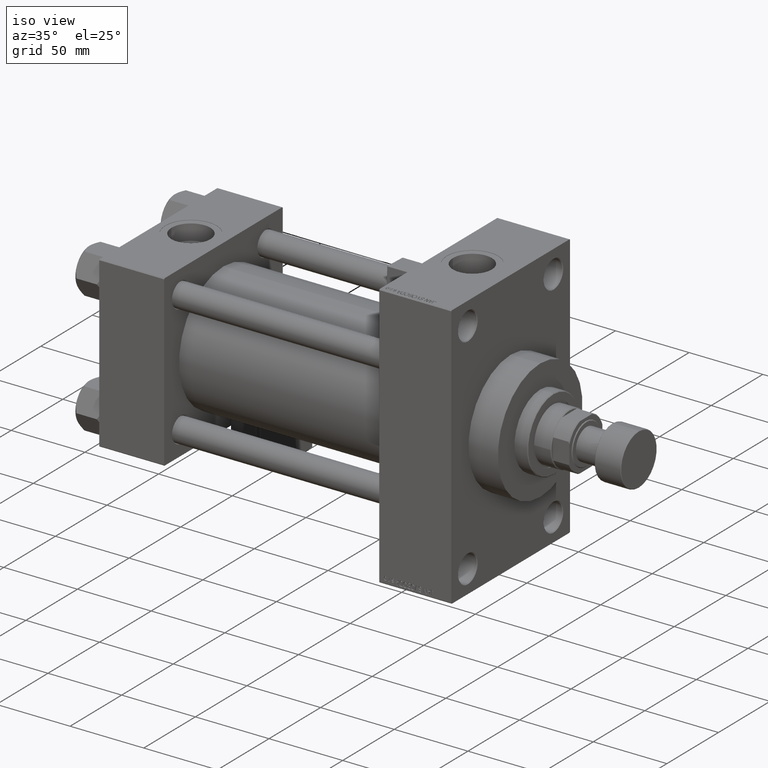
[diagram: clean part render]
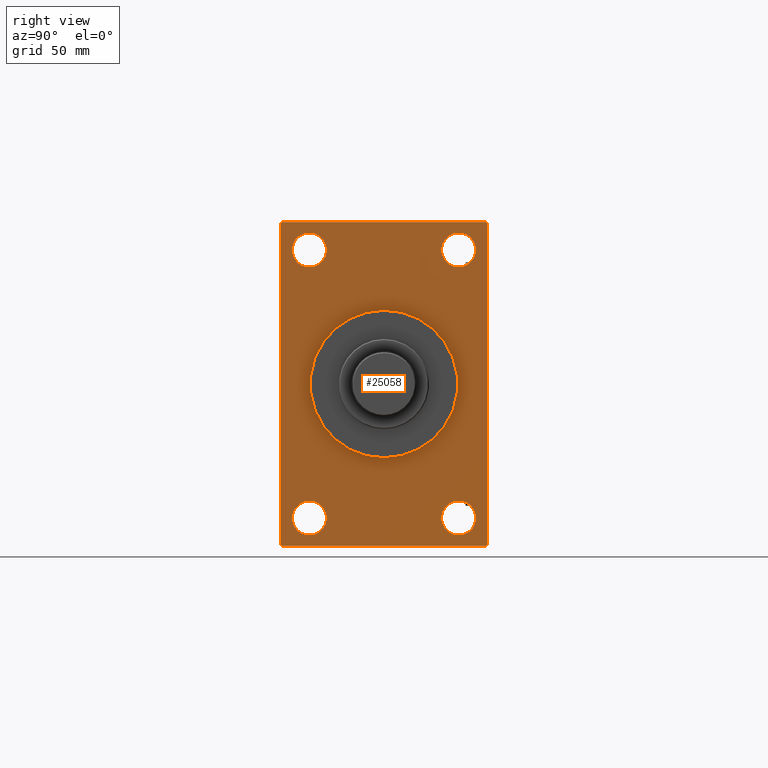
[diagram: tour spotlight — one face highlighted and labeled with its STEP entity id]
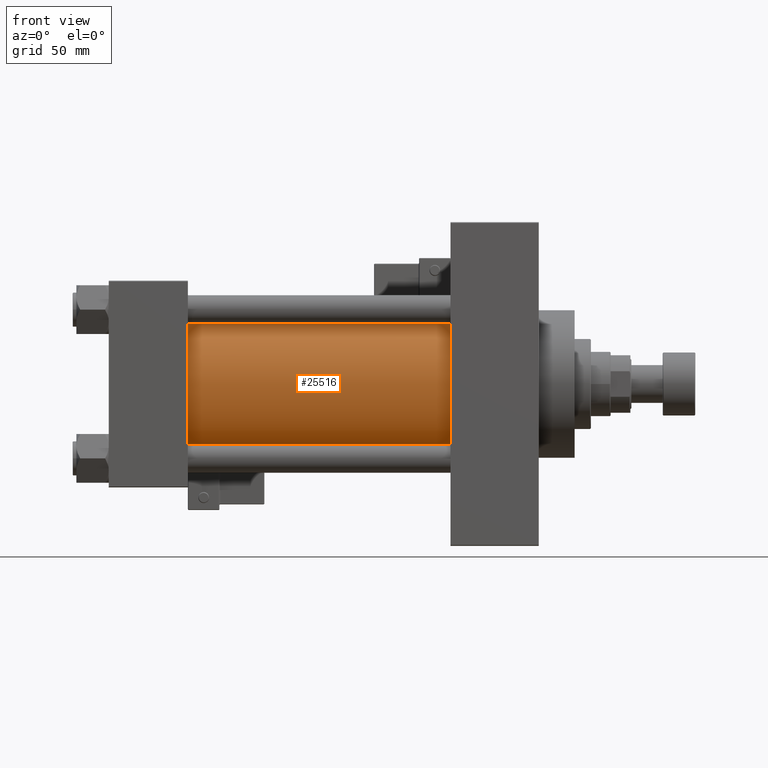
[diagram: tour spotlight — one face highlighted and labeled with its STEP entity id]
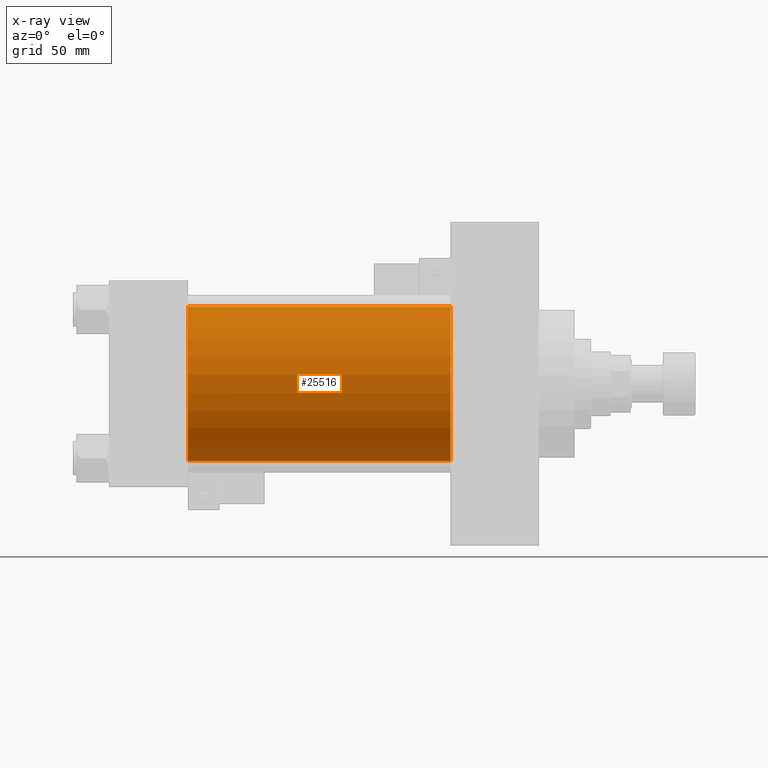
[diagram: x-ray of the same camera — body ghosted, this tour face saturated]
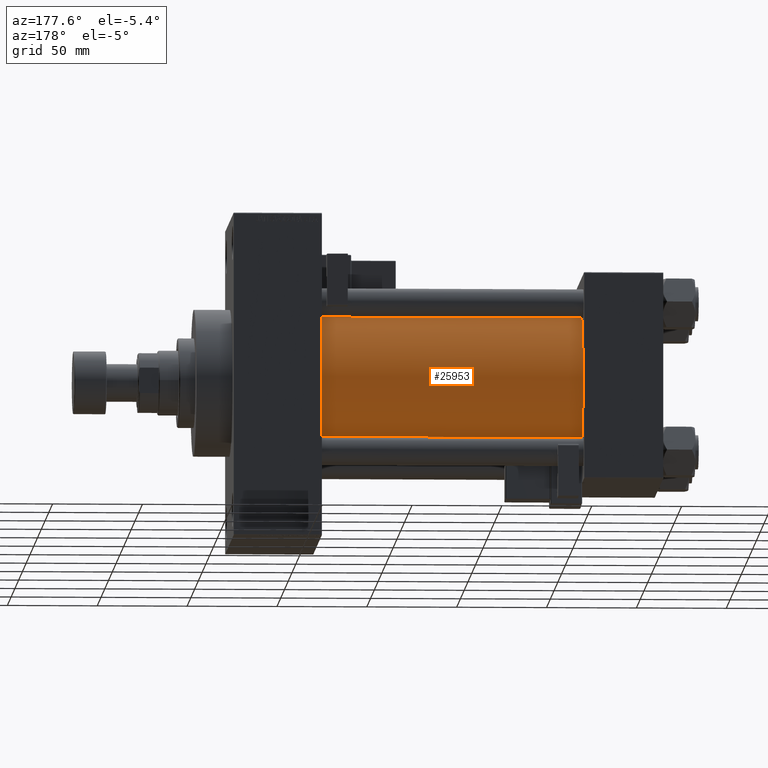
[diagram: tour spotlight — one face highlighted and labeled with its STEP entity id]
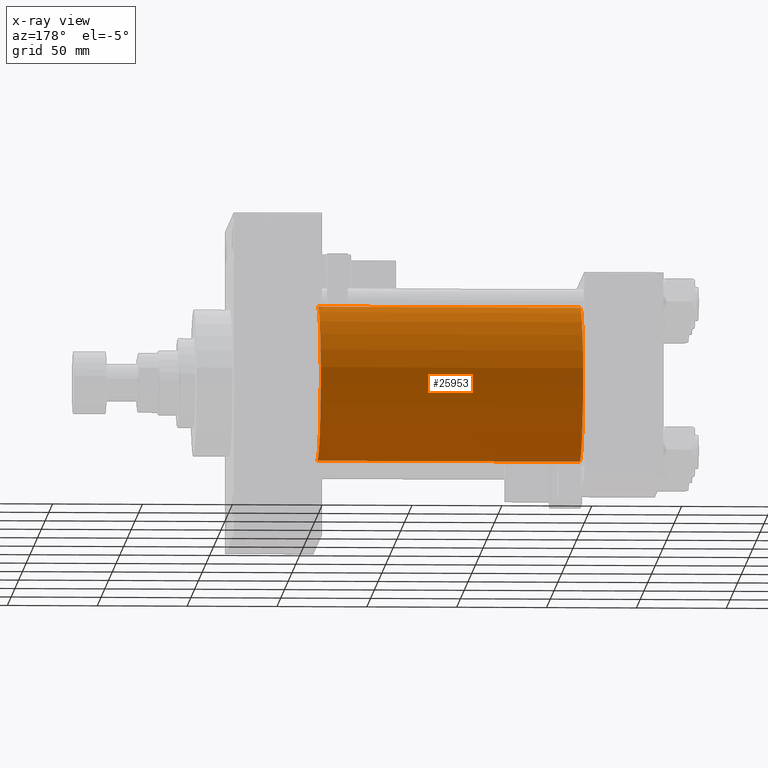
[diagram: x-ray of the same camera — body ghosted, this tour face saturated]
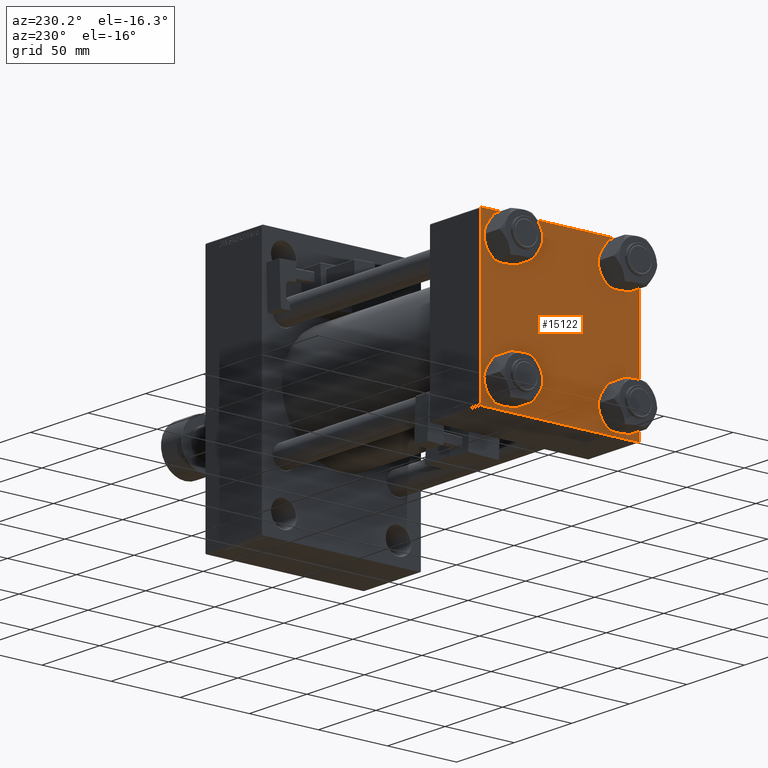
[diagram: tour spotlight — one face highlighted and labeled with its STEP entity id]
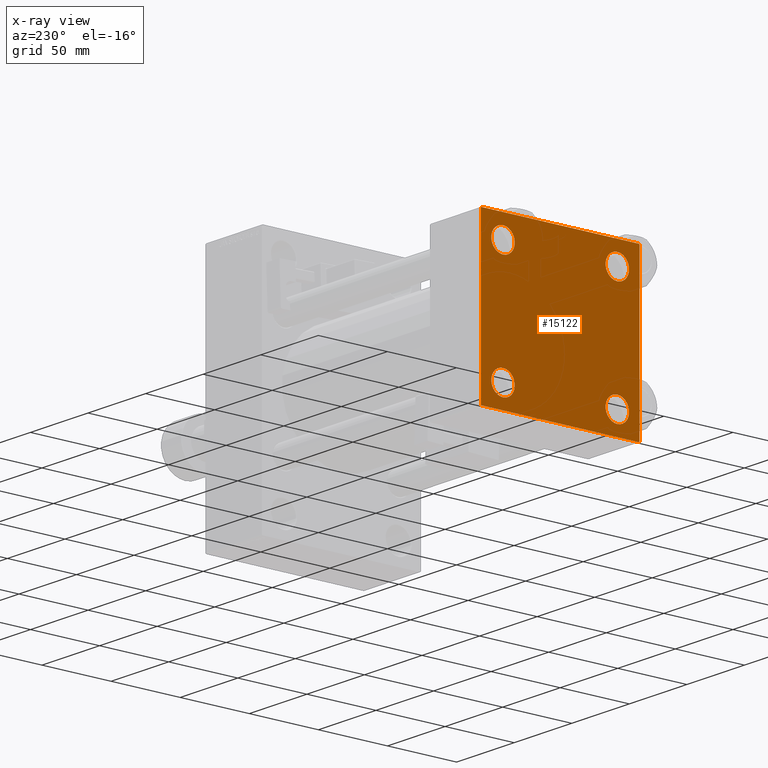
[diagram: x-ray of the same camera — body ghosted, this tour face saturated]
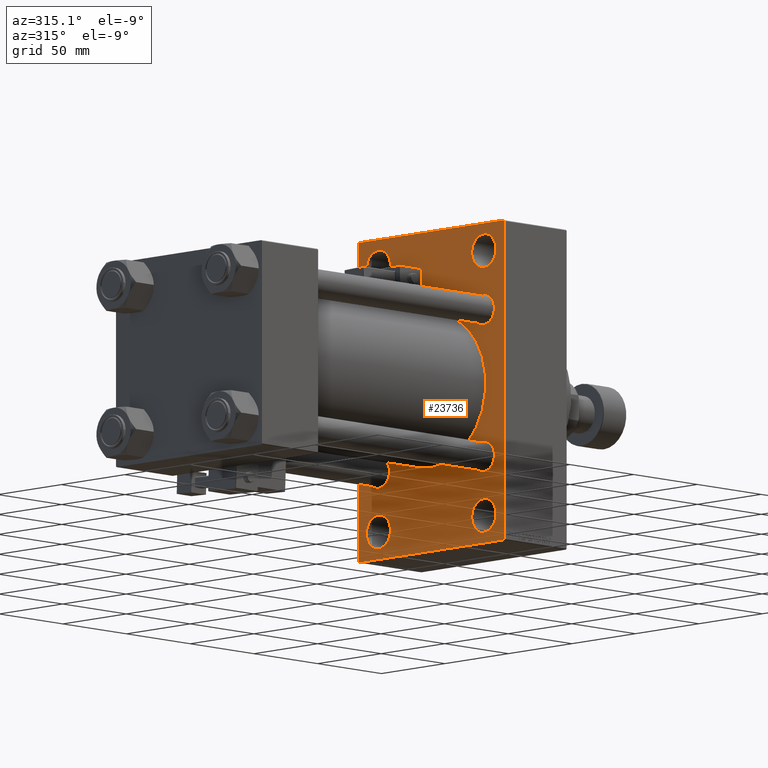
[diagram: tour spotlight — one face highlighted and labeled with its STEP entity id]
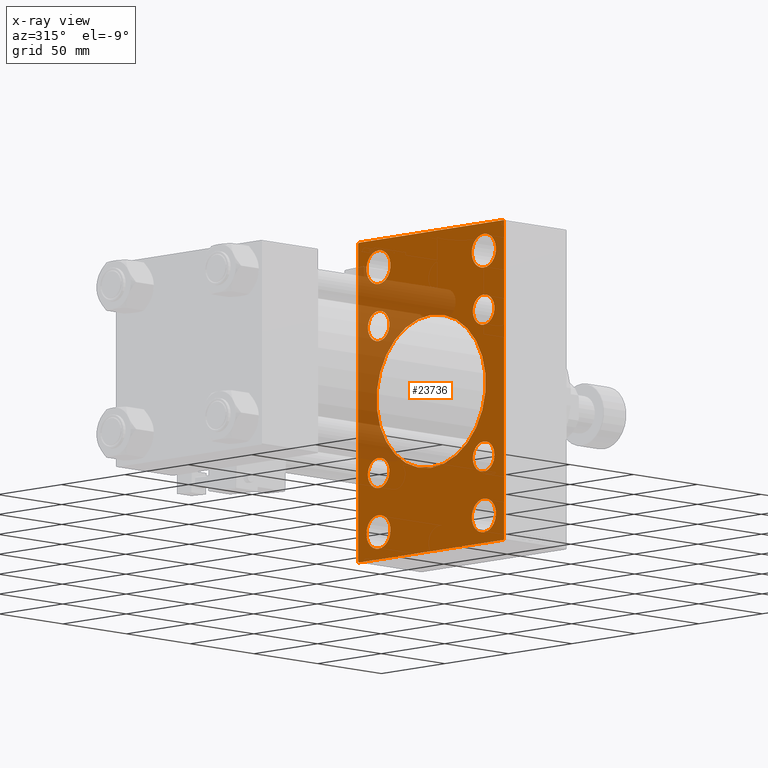
[diagram: x-ray of the same camera — body ghosted, this tour face saturated]
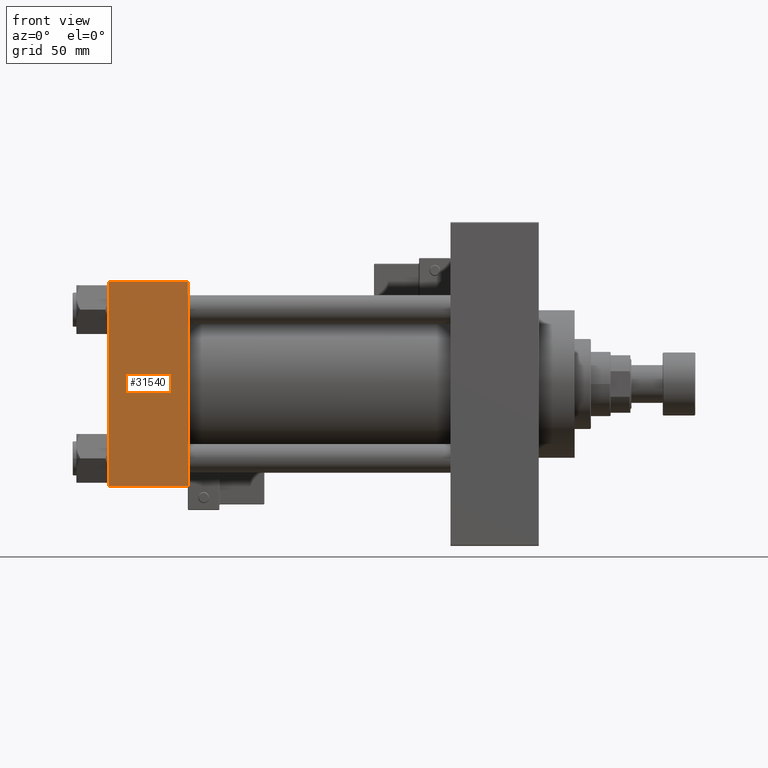
[diagram: tour spotlight — one face highlighted and labeled with its STEP entity id]
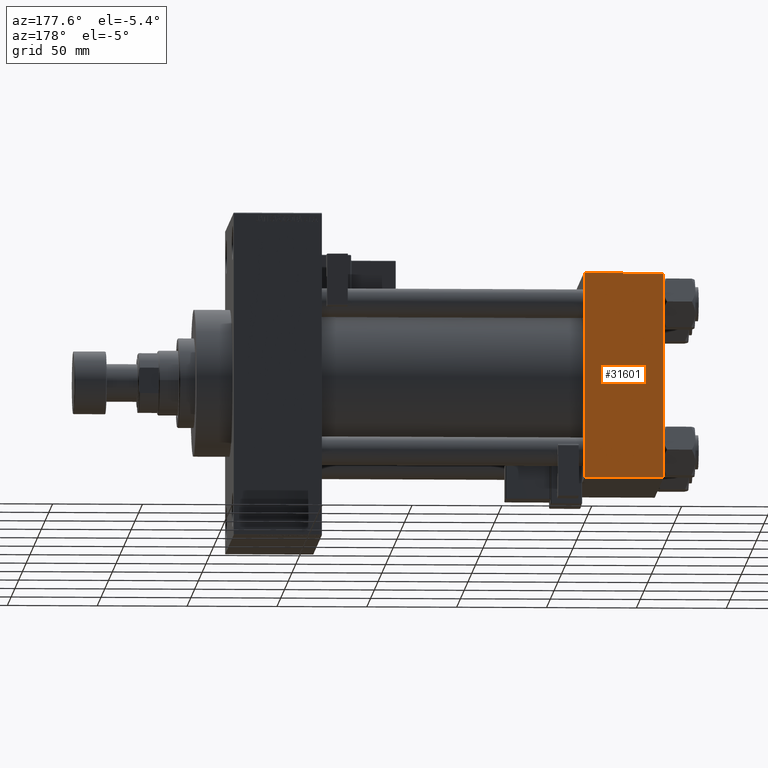
[diagram: tour spotlight — one face highlighted and labeled with its STEP entity id]
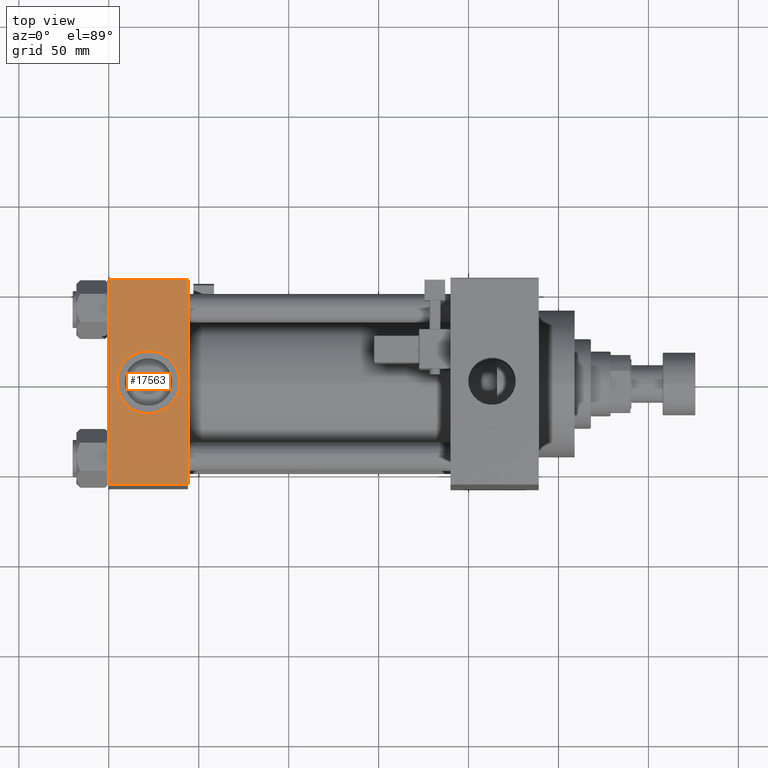
[diagram: tour spotlight — one face highlighted and labeled with its STEP entity id]
A machine part: a face-by-face anatomy tour. The part has 1319 B-rep faces; the first image is the clean iso view, then the 8 largest visible faces are spotlighted one at a time (largest first), each with its STEP entity span.

Face 1 — right view, entity #25058. In plain terms, the highlighted planar face has unit normal (-1, 0, 0).
Definition (entity closure, byte-faithful):
#137 = DIRECTION ( 'NONE',  ( -1.000000000000000000, 0.000000000000000000, -0.000000000000000000 ) ) ;
#344 = VECTOR ( 'NONE', #40913, 1000.000000000000000 ) ;
#886 = CARTESIAN_POINT ( 'NONE',  ( 239.0000000000000000, -41.49999999999999289, -83.99999999999998579 ) ) ;
#972 = CARTESIAN_POINT ( 'NONE',  ( 239.0000000000000000, 0.000000000000000000, 0.000000000000000000 ) ) ;
#1580 = CARTESIAN_POINT ( 'NONE',  ( 239.0000000000000000, -41.49999999999999289, 74.50000000000001421 ) ) ;
#1906 = EDGE_LOOP ( 'NONE', ( #25823, #15950, #28905, #39026, #38880, #3445, #3188, #40439 ) ) ;
#2168 = VERTEX_POINT ( 'NONE', #6017 ) ;
#2479 = DIRECTION ( 'NONE',  ( 0.000000000000000000, 0.000000000000000000, 1.000000000000000000 ) ) ;
#2595 = LINE ( 'NONE', #25263, #43171 ) ;
#2850 = CARTESIAN_POINT ( 'NONE',  ( 239.0000000000000000, 41.50000000000000711, 74.50000000000001421 ) ) ;
#3188 = ORIENTED_EDGE ( 'NONE', *, *, #21799, .T. ) ;
#3445 = ORIENTED_EDGE ( 'NONE', *, *, #5389, .T. ) ;
#4232 = ORIENTED_EDGE ( 'NONE', *, *, #18412, .T. ) ;
#4272 = DIRECTION ( 'NONE',  ( -1.000000000000000000, 0.000000000000000000, -0.000000000000000000 ) ) ;
#4408 = ORIENTED_EDGE ( 'NONE', *, *, #26892, .T. ) ;
#4708 = ORIENTED_EDGE ( 'NONE', *, *, #29250, .F. ) ;
#4787 = DIRECTION ( 'NONE',  ( 0.000000000000000000, 0.000000000000000000, -1.000000000000000000 ) ) ;
#4960 = EDGE_LOOP ( 'NONE', ( #39636, #43661 ) ) ;
#5164 = EDGE_CURVE ( 'NONE', #29628, #28672, #13326, .T. ) ;
#5260 = EDGE_CURVE ( 'NONE', #25186, #21575, #32038, .T. ) ;
#5287 = EDGE_CURVE ( 'NONE', #47974, #48120, #44998, .T. ) ;
#5387 = DIRECTION ( 'NONE',  ( -0.000000000000000000, -0.7071067811865328068, -0.7071067811865622277 ) ) ;
#5389 = EDGE_CURVE ( 'NONE', #47974, #24473, #32778, .T. ) ;
#6017 = CARTESIAN_POINT ( 'NONE',  ( 239.0000000000000000, 56.99999999999995026, -90.00000000000000000 ) ) ;
#6048 = VERTEX_POINT ( 'NONE', #26289 ) ;
#6097 = EDGE_CURVE ( 'NONE', #21575, #25186, #7568, .T. ) ;
#6639 = LINE ( 'NONE', #18078, #23384 ) ;
#6705 = CARTESIAN_POINT ( 'NONE',  ( 239.0000000000000000, 57.49999999999997158, 89.99999999999998579 ) ) ;
#6799 = DIRECTION ( 'NONE',  ( 0.000000000000000000, 0.000000000000000000, 1.000000000000000000 ) ) ;
#7203 = CARTESIAN_POINT ( 'NONE',  ( 239.0000000000000000, -57.50000000000002132, -89.49999999999997158 ) ) ;
#7568 = CIRCLE ( 'NONE', #37637, 9.500000000000008882 ) ;
#8096 = DIRECTION ( 'NONE',  ( -0.000000000000000000, 0.000000000000000000, 1.000000000000000000 ) ) ;
#8586 = FACE_BOUND ( 'NONE', #27827, .T. ) ;
#8783 = ORIENTED_EDGE ( 'NONE', *, *, #5260, .T. ) ;
#8920 = VERTEX_POINT ( 'NONE', #26944 ) ;
#10112 = EDGE_CURVE ( 'NONE', #28672, #29628, #30486, .T. ) ;
#10523 = EDGE_LOOP ( 'NONE', ( #47727, #4408 ) ) ;
#10973 = FACE_OUTER_BOUND ( 'NONE', #1906, .T. ) ;
#11274 = DIRECTION ( 'NONE',  ( 0.000000000000000000, -1.000000000000000000, -1.206764157201257291E-16 ) ) ;
#11508 = CARTESIAN_POINT ( 'NONE',  ( 239.0000000000000000, -41.49999999999999289, -74.49999999999998579 ) ) ;
#11557 = EDGE_LOOP ( 'NONE', ( #4708, #17154 ) ) ;
#11680 = DIRECTION ( 'NONE',  ( 1.000000000000000000, 0.000000000000000000, 0.000000000000000000 ) ) ;
#12197 = DIRECTION ( 'NONE',  ( 0.000000000000000000, 0.000000000000000000, -1.000000000000000000 ) ) ;
#12357 = CARTESIAN_POINT ( 'NONE',  ( 239.0000000000000000, -57.00000000000002132, -90.00000000000001421 ) ) ;
#12456 = EDGE_CURVE ( 'NONE', #8920, #46553, #35427, .T. ) ;
#12545 = EDGE_CURVE ( 'NONE', #38206, #6048, #24741, .T. ) ;
#13326 = CIRCLE ( 'NONE', #35296, 9.500000000000008882 ) ;
#13464 = VECTOR ( 'NONE', #5387, 1000.000000000000000 ) ;
#13534 = CIRCLE ( 'NONE', #25715, 41.00000000000000000 ) ;
#13844 = CARTESIAN_POINT ( 'NONE',  ( 239.0000000000000000, 5.021051876504148963E-15, -41.00000000000000000 ) ) ;
#13888 = AXIS2_PLACEMENT_3D ( 'NONE', #2850, #25771, #21947 ) ;
#13942 = EDGE_CURVE ( 'NONE', #41422, #34022, #13534, .T. ) ;
#14181 = CARTESIAN_POINT ( 'NONE',  ( 239.0000000000000000, 57.00000000000002842, 89.99999999999998579 ) ) ;
#14596 = VERTEX_POINT ( 'NONE', #7203 ) ;
#14688 = CARTESIAN_POINT ( 'NONE',  ( 239.0000000000000000, 57.49999999999997868, -89.49999999999995737 ) ) ;
#15950 = ORIENTED_EDGE ( 'NONE', *, *, #41667, .T. ) ;
#16184 = CARTESIAN_POINT ( 'NONE',  ( 239.0000000000000000, 41.50000000000000711, -64.99999999999998579 ) ) ;
#16266 = CARTESIAN_POINT ( 'NONE',  ( 239.0000000000000000, 0.000000000000000000, 0.000000000000000000 ) ) ;
#16423 = ORIENTED_EDGE ( 'NONE', *, *, #6097, .T. ) ;
#17082 = CARTESIAN_POINT ( 'NONE',  ( 239.0000000000000000, 57.49999999999997868, -89.49999999999990052 ) ) ;
#17154 = ORIENTED_EDGE ( 'NONE', *, *, #13942, .F. ) ;
#17596 = LINE ( 'NONE', #21677, #48734 ) ;
#18078 = CARTESIAN_POINT ( 'NONE',  ( 239.0000000000000000, -57.50000000000002132, 89.99999999999997158 ) ) ;
#18412 = EDGE_CURVE ( 'NONE', #46553, #8920, #34008, .T. ) ;
#18439 = EDGE_CURVE ( 'NONE', #2168, #48120, #49567, .T. ) ;
#18820 = CARTESIAN_POINT ( 'NONE',  ( 239.0000000000000000, 41.50000000000000711, -74.50000000000000000 ) ) ;
#19046 = AXIS2_PLACEMENT_3D ( 'NONE', #41164, #25394, #2479 ) ;
#19102 = AXIS2_PLACEMENT_3D ( 'NONE', #972, #11680, #4787 ) ;
#19453 = CARTESIAN_POINT ( 'NONE',  ( 239.0000000000000000, -57.00000000000001421, 89.99999999999997158 ) ) ;
#20047 = FACE_BOUND ( 'NONE', #36523, .T. ) ;
#20382 = DIRECTION ( 'NONE',  ( -1.000000000000000000, 0.000000000000000000, -0.000000000000000000 ) ) ;
#21049 = CARTESIAN_POINT ( 'NONE',  ( 239.0000000000000000, -41.49999999999999289, -64.99999999999997158 ) ) ;
#21319 = CARTESIAN_POINT ( 'NONE',  ( 239.0000000000000000, 57.49999999999997158, 89.99999999999998579 ) ) ;
#21575 = VERTEX_POINT ( 'NONE', #886 ) ;
#21677 = CARTESIAN_POINT ( 'NONE',  ( 239.0000000000000000, -57.00000000000002132, -90.00000000000001421 ) ) ;
#21799 = EDGE_CURVE ( 'NONE', #24473, #38206, #30366, .T. ) ;
#21947 = DIRECTION ( 'NONE',  ( 0.000000000000000000, 0.000000000000000000, 1.000000000000000000 ) ) ;
#22277 = CARTESIAN_POINT ( 'NONE',  ( 239.0000000000000000, 41.50000000000000711, -84.00000000000000000 ) ) ;
#22304 = EDGE_CURVE ( 'NONE', #44269, #44322, #50291, .T. ) ;
#22360 = DIRECTION ( 'NONE',  ( -1.000000000000000000, 0.000000000000000000, -0.000000000000000000 ) ) ;
#22647 = DIRECTION ( 'NONE',  ( 0.000000000000000000, 0.000000000000000000, 1.000000000000000000 ) ) ;
#23384 = VECTOR ( 'NONE', #33864, 1000.000000000000000 ) ;
#23474 = CARTESIAN_POINT ( 'NONE',  ( 239.0000000000000000, 0.000000000000000000, 41.00000000000000000 ) ) ;
#23878 = FACE_BOUND ( 'NONE', #10523, .T. ) ;
#24473 = VERTEX_POINT ( 'NONE', #31438 ) ;
#24656 = DIRECTION ( 'NONE',  ( 1.000000000000000000, 0.000000000000000000, 0.000000000000000000 ) ) ;
#24741 = LINE ( 'NONE', #40260, #13464 ) ;
#24844 = AXIS2_PLACEMENT_3D ( 'NONE', #1580, #45099, #41269 ) ;
#25058 = ADVANCED_FACE ( 'NONE', ( #20047, #8586, #47046, #23878, #27695, #10973 ), #39396, .F. ) ;
#25186 = VERTEX_POINT ( 'NONE', #21049 ) ;
#25263 = CARTESIAN_POINT ( 'NONE',  ( 239.0000000000000000, 57.49999999999997868, -90.00000000000000000 ) ) ;
#25268 = CIRCLE ( 'NONE', #13888, 9.500000000000008882 ) ;
#25394 = DIRECTION ( 'NONE',  ( -1.000000000000000000, 0.000000000000000000, -0.000000000000000000 ) ) ;
#25676 = DIRECTION ( 'NONE',  ( 0.000000000000000000, 0.000000000000000000, 1.000000000000000000 ) ) ;
#25715 = AXIS2_PLACEMENT_3D ( 'NONE', #16266, #24656, #12197 ) ;
#25771 = DIRECTION ( 'NONE',  ( -1.000000000000000000, 0.000000000000000000, -0.000000000000000000 ) ) ;
#25823 = ORIENTED_EDGE ( 'NONE', *, *, #35203, .T. ) ;
#25909 = DIRECTION ( 'NONE',  ( 0.000000000000000000, -0.7071067811865474617, 0.7071067811865474617 ) ) ;
#26155 = CARTESIAN_POINT ( 'NONE',  ( 239.0000000000000000, -41.49999999999999289, 74.50000000000001421 ) ) ;
#26289 = CARTESIAN_POINT ( 'NONE',  ( 239.0000000000000000, -57.50000000000002132, 89.49999999999994316 ) ) ;
#26887 = EDGE_CURVE ( 'NONE', #2168, #42294, #2595, .T. ) ;
#26892 = EDGE_CURVE ( 'NONE', #44322, #44269, #25268, .T. ) ;
#26944 = CARTESIAN_POINT ( 'NONE',  ( 239.0000000000000000, -41.49999999999999289, 65.00000000000000000 ) ) ;
#27695 = FACE_BOUND ( 'NONE', #11557, .T. ) ;
#27827 = EDGE_LOOP ( 'NONE', ( #16423, #8783 ) ) ;
#28672 = VERTEX_POINT ( 'NONE', #22277 ) ;
#28905 = ORIENTED_EDGE ( 'NONE', *, *, #26887, .F. ) ;
#29027 = CARTESIAN_POINT ( 'NONE',  ( 239.0000000000000000, 41.50000000000000711, -74.50000000000000000 ) ) ;
#29250 = EDGE_CURVE ( 'NONE', #34022, #41422, #41883, .T. ) ;
#29628 = VERTEX_POINT ( 'NONE', #16184 ) ;
#30215 = DIRECTION ( 'NONE',  ( -0.000000000000000000, 0.7071067811865378028, 0.7071067811865573427 ) ) ;
#30366 = LINE ( 'NONE', #6705, #47057 ) ;
#30486 = CIRCLE ( 'NONE', #48354, 9.500000000000008882 ) ;
#31218 = VECTOR ( 'NONE', #25909, 1000.000000000000114 ) ;
#31425 = CARTESIAN_POINT ( 'NONE',  ( 239.0000000000000000, 41.50000000000000711, 65.00000000000000000 ) ) ;
#31438 = CARTESIAN_POINT ( 'NONE',  ( 239.0000000000000000, 57.00000000000002842, 89.99999999999998579 ) ) ;
#32038 = CIRCLE ( 'NONE', #19046, 9.500000000000008882 ) ;
#32160 = CARTESIAN_POINT ( 'NONE',  ( 239.0000000000000000, 41.50000000000000711, 84.00000000000001421 ) ) ;
#32778 = LINE ( 'NONE', #14181, #31218 ) ;
#33864 = DIRECTION ( 'NONE',  ( 0.000000000000000000, 0.000000000000000000, -1.000000000000000000 ) ) ;
#34008 = CIRCLE ( 'NONE', #45303, 9.500000000000008882 ) ;
#34022 = VERTEX_POINT ( 'NONE', #23474 ) ;
#35203 = EDGE_CURVE ( 'NONE', #6048, #14596, #6639, .T. ) ;
#35296 = AXIS2_PLACEMENT_3D ( 'NONE', #18820, #46571, #22647 ) ;
#35427 = CIRCLE ( 'NONE', #24844, 9.500000000000008882 ) ;
#35678 = DIRECTION ( 'NONE',  ( 0.000000000000000000, 0.000000000000000000, 1.000000000000000000 ) ) ;
#36523 = EDGE_LOOP ( 'NONE', ( #45948, #4232 ) ) ;
#37401 = AXIS2_PLACEMENT_3D ( 'NONE', #45607, #4272, #8096 ) ;
#37637 = AXIS2_PLACEMENT_3D ( 'NONE', #11508, #20382, #35678 ) ;
#38206 = VERTEX_POINT ( 'NONE', #19453 ) ;
#38880 = ORIENTED_EDGE ( 'NONE', *, *, #5287, .F. ) ;
#39026 = ORIENTED_EDGE ( 'NONE', *, *, #18439, .T. ) ;
#39396 = PLANE ( 'NONE',  #37401 ) ;
#39636 = ORIENTED_EDGE ( 'NONE', *, *, #10112, .T. ) ;
#40260 = CARTESIAN_POINT ( 'NONE',  ( 239.0000000000000000, -57.50000000000002132, 89.49999999999994316 ) ) ;
#40439 = ORIENTED_EDGE ( 'NONE', *, *, #12545, .T. ) ;
#40913 = DIRECTION ( 'NONE',  ( 0.000000000000000000, 3.854941057726238467E-17, -1.000000000000000000 ) ) ;
#41164 = CARTESIAN_POINT ( 'NONE',  ( 239.0000000000000000, -41.49999999999999289, -74.49999999999998579 ) ) ;
#41269 = DIRECTION ( 'NONE',  ( 0.000000000000000000, 0.000000000000000000, 1.000000000000000000 ) ) ;
#41422 = VERTEX_POINT ( 'NONE', #13844 ) ;
#41544 = DIRECTION ( 'NONE',  ( 0.000000000000000000, -1.000000000000000000, -1.206764157201257045E-16 ) ) ;
#41667 = EDGE_CURVE ( 'NONE', #14596, #42294, #17596, .T. ) ;
#41669 = DIRECTION ( 'NONE',  ( -1.000000000000000000, 0.000000000000000000, -0.000000000000000000 ) ) ;
#41705 = CARTESIAN_POINT ( 'NONE',  ( 239.0000000000000000, 41.50000000000000711, 74.50000000000001421 ) ) ;
#41883 = CIRCLE ( 'NONE', #19102, 41.00000000000000000 ) ;
#42184 = AXIS2_PLACEMENT_3D ( 'NONE', #41705, #22360, #25676 ) ;
#42294 = VERTEX_POINT ( 'NONE', #12357 ) ;
#43171 = VECTOR ( 'NONE', #41544, 1000.000000000000000 ) ;
#43661 = ORIENTED_EDGE ( 'NONE', *, *, #5164, .T. ) ;
#44068 = DIRECTION ( 'NONE',  ( 0.000000000000000000, 0.000000000000000000, 1.000000000000000000 ) ) ;
#44269 = VERTEX_POINT ( 'NONE', #31425 ) ;
#44322 = VERTEX_POINT ( 'NONE', #32160 ) ;
#44854 = DIRECTION ( 'NONE',  ( 0.000000000000000000, 0.7071067811865573427, -0.7071067811865378028 ) ) ;
#44998 = LINE ( 'NONE', #21319, #344 ) ;
#45099 = DIRECTION ( 'NONE',  ( -1.000000000000000000, 0.000000000000000000, -0.000000000000000000 ) ) ;
#45303 = AXIS2_PLACEMENT_3D ( 'NONE', #26155, #41669, #6799 ) ;
#45607 = CARTESIAN_POINT ( 'NONE',  ( 239.0000000000000000, 0.000000000000000000, 0.000000000000000000 ) ) ;
#45948 = ORIENTED_EDGE ( 'NONE', *, *, #12456, .T. ) ;
#46553 = VERTEX_POINT ( 'NONE', #47502 ) ;
#46571 = DIRECTION ( 'NONE',  ( -1.000000000000000000, 0.000000000000000000, -0.000000000000000000 ) ) ;
#47046 = FACE_BOUND ( 'NONE', #4960, .T. ) ;
#47057 = VECTOR ( 'NONE', #11274, 1000.000000000000000 ) ;
#47502 = CARTESIAN_POINT ( 'NONE',  ( 239.0000000000000000, -41.49999999999999289, 84.00000000000001421 ) ) ;
#47727 = ORIENTED_EDGE ( 'NONE', *, *, #22304, .T. ) ;
#47974 = VERTEX_POINT ( 'NONE', #49965 ) ;
#48120 = VERTEX_POINT ( 'NONE', #17082 ) ;
#48354 = AXIS2_PLACEMENT_3D ( 'NONE', #29027, #137, #44068 ) ;
#48734 = VECTOR ( 'NONE', #44854, 1000.000000000000000 ) ;
#49372 = VECTOR ( 'NONE', #30215, 1000.000000000000000 ) ;
#49567 = LINE ( 'NONE', #14688, #49372 ) ;
#49965 = CARTESIAN_POINT ( 'NONE',  ( 239.0000000000000000, 57.49999999999997158, 89.50000000000004263 ) ) ;
#50291 = CIRCLE ( 'NONE', #42184, 9.500000000000008882 ) ;

Face 2 — front view, entity #25516. An x-ray twin of the same camera follows (body ghosted, this face saturated) — the face is partly hidden behind the body. In plain terms, the highlighted cylindrical surface (partial cylindrical patch) has radius 43 mm, axis along (-1, -0, -0).
Definition (entity closure, byte-faithful):
#1614 = DIRECTION ( 'NONE',  ( 1.000000000000000000, -0.000000000000000000, 0.000000000000000000 ) ) ;
#2128 = CARTESIAN_POINT ( 'NONE',  ( 190.0000000000000000, 2.663896022368408223E-15, -43.00000000000000000 ) ) ;
#6620 = DIRECTION ( 'NONE',  ( 1.000000000000000000, 0.000000000000000000, 0.000000000000000000 ) ) ;
#8528 = ORIENTED_EDGE ( 'NONE', *, *, #37523, .T. ) ;
#8796 = CARTESIAN_POINT ( 'NONE',  ( 190.0000000000000000, -2.602085213965210642E-15, 43.00000000000000000 ) ) ;
#9260 = ORIENTED_EDGE ( 'NONE', *, *, #36780, .F. ) ;
#9272 = CARTESIAN_POINT ( 'NONE',  ( 190.0000000000000000, 2.663896022368408223E-15, -43.00000000000000000 ) ) ;
#9635 = AXIS2_PLACEMENT_3D ( 'NONE', #38678, #6620, #11445 ) ;
#9745 = CARTESIAN_POINT ( 'NONE',  ( 43.99999999999998579, -2.602085213965210642E-15, 0.000000000000000000 ) ) ;
#11445 = DIRECTION ( 'NONE',  ( 0.000000000000000000, 0.000000000000000000, -1.000000000000000000 ) ) ;
#12014 = VERTEX_POINT ( 'NONE', #9272 ) ;
#12371 = LINE ( 'NONE', #8796, #32206 ) ;
#13373 = EDGE_CURVE ( 'NONE', #30527, #15789, #12371, .T. ) ;
#15366 = FACE_OUTER_BOUND ( 'NONE', #35957, .T. ) ;
#15615 = CARTESIAN_POINT ( 'NONE',  ( 190.0000000000000000, -2.602085213965210642E-15, 0.000000000000000000 ) ) ;
#15789 = VERTEX_POINT ( 'NONE', #28738 ) ;
#16441 = DIRECTION ( 'NONE',  ( -1.000000000000000000, -0.000000000000000000, -0.000000000000000000 ) ) ;
#21479 = DIRECTION ( 'NONE',  ( -1.000000000000000000, -0.000000000000000000, -0.000000000000000000 ) ) ;
#23506 = DIRECTION ( 'NONE',  ( -1.000000000000000000, -0.000000000000000000, -0.000000000000000000 ) ) ;
#23619 = AXIS2_PLACEMENT_3D ( 'NONE', #15615, #23506, #49988 ) ;
#24284 = DIRECTION ( 'NONE',  ( 0.000000000000000000, 0.000000000000000000, 1.000000000000000000 ) ) ;
#24411 = VECTOR ( 'NONE', #21479, 1000.000000000000000 ) ;
#24713 = EDGE_CURVE ( 'NONE', #12014, #46566, #25302, .T. ) ;
#25302 = LINE ( 'NONE', #2128, #24411 ) ;
#25516 = ADVANCED_FACE ( 'NONE', ( #15366 ), #46426, .T. ) ;
#27540 = CIRCLE ( 'NONE', #45444, 43.00000000000000000 ) ;
#28738 = CARTESIAN_POINT ( 'NONE',  ( 43.99999999999998579, -2.602085213965210642E-15, 43.00000000000000000 ) ) ;
#30527 = VERTEX_POINT ( 'NONE', #42937 ) ;
#32206 = VECTOR ( 'NONE', #16441, 1000.000000000000000 ) ;
#33210 = CIRCLE ( 'NONE', #9635, 43.00000000000000000 ) ;
#33718 = CARTESIAN_POINT ( 'NONE',  ( 43.99999999999998579, 2.663896022368408223E-15, -43.00000000000000000 ) ) ;
#35957 = EDGE_LOOP ( 'NONE', ( #50242, #9260, #42372, #8528 ) ) ;
#36780 = EDGE_CURVE ( 'NONE', #30527, #12014, #33210, .T. ) ;
#37523 = EDGE_CURVE ( 'NONE', #15789, #46566, #27540, .T. ) ;
#38678 = CARTESIAN_POINT ( 'NONE',  ( 190.0000000000000000, -2.602085213965210642E-15, 0.000000000000000000 ) ) ;
#42372 = ORIENTED_EDGE ( 'NONE', *, *, #13373, .T. ) ;
#42937 = CARTESIAN_POINT ( 'NONE',  ( 190.0000000000000000, -2.602085213965210642E-15, 43.00000000000000000 ) ) ;
#45444 = AXIS2_PLACEMENT_3D ( 'NONE', #9745, #1614, #24284 ) ;
#46426 = CYLINDRICAL_SURFACE ( 'NONE', #23619, 43.00000000000000000 ) ;
#46566 = VERTEX_POINT ( 'NONE', #33718 ) ;
#49988 = DIRECTION ( 'NONE',  ( 0.000000000000000000, 0.000000000000000000, 1.000000000000000000 ) ) ;
#50242 = ORIENTED_EDGE ( 'NONE', *, *, #24713, .F. ) ;

Face 3 — auxiliary view, entity #25953. An x-ray twin of the same camera follows (body ghosted, this face saturated) — the face is partly hidden behind the body. In plain terms, the highlighted cylindrical surface (partial cylindrical patch) has radius 43 mm, axis along (-1, -0, -0).
Definition (entity closure, byte-faithful):
#2128 = CARTESIAN_POINT ( 'NONE',  ( 190.0000000000000000, 2.663896022368408223E-15, -43.00000000000000000 ) ) ;
#3578 = DIRECTION ( 'NONE',  ( 1.000000000000000000, 0.000000000000000000, 0.000000000000000000 ) ) ;
#6340 = DIRECTION ( 'NONE',  ( -1.000000000000000000, -0.000000000000000000, -0.000000000000000000 ) ) ;
#8796 = CARTESIAN_POINT ( 'NONE',  ( 190.0000000000000000, -2.602085213965210642E-15, 43.00000000000000000 ) ) ;
#9272 = CARTESIAN_POINT ( 'NONE',  ( 190.0000000000000000, 2.663896022368408223E-15, -43.00000000000000000 ) ) ;
#10324 = DIRECTION ( 'NONE',  ( 0.000000000000000000, 0.000000000000000000, 1.000000000000000000 ) ) ;
#10839 = ORIENTED_EDGE ( 'NONE', *, *, #39465, .F. ) ;
#12014 = VERTEX_POINT ( 'NONE', #9272 ) ;
#12371 = LINE ( 'NONE', #8796, #32206 ) ;
#13373 = EDGE_CURVE ( 'NONE', #30527, #15789, #12371, .T. ) ;
#14480 = DIRECTION ( 'NONE',  ( 0.000000000000000000, 0.000000000000000000, 1.000000000000000000 ) ) ;
#15089 = EDGE_CURVE ( 'NONE', #46566, #15789, #44471, .T. ) ;
#15565 = ORIENTED_EDGE ( 'NONE', *, *, #24713, .T. ) ;
#15789 = VERTEX_POINT ( 'NONE', #28738 ) ;
#16441 = DIRECTION ( 'NONE',  ( -1.000000000000000000, -0.000000000000000000, -0.000000000000000000 ) ) ;
#20212 = AXIS2_PLACEMENT_3D ( 'NONE', #35141, #3578, #49665 ) ;
#21479 = DIRECTION ( 'NONE',  ( -1.000000000000000000, -0.000000000000000000, -0.000000000000000000 ) ) ;
#24411 = VECTOR ( 'NONE', #21479, 1000.000000000000000 ) ;
#24713 = EDGE_CURVE ( 'NONE', #12014, #46566, #25302, .T. ) ;
#25302 = LINE ( 'NONE', #2128, #24411 ) ;
#25441 = CYLINDRICAL_SURFACE ( 'NONE', #29295, 43.00000000000000000 ) ;
#25794 = AXIS2_PLACEMENT_3D ( 'NONE', #33481, #32731, #10324 ) ;
#25953 = ADVANCED_FACE ( 'NONE', ( #33319 ), #25441, .T. ) ;
#26908 = EDGE_LOOP ( 'NONE', ( #10839, #15565, #49639, #47617 ) ) ;
#28738 = CARTESIAN_POINT ( 'NONE',  ( 43.99999999999998579, -2.602085213965210642E-15, 43.00000000000000000 ) ) ;
#29295 = AXIS2_PLACEMENT_3D ( 'NONE', #36893, #6340, #14480 ) ;
#30527 = VERTEX_POINT ( 'NONE', #42937 ) ;
#32206 = VECTOR ( 'NONE', #16441, 1000.000000000000000 ) ;
#32731 = DIRECTION ( 'NONE',  ( 1.000000000000000000, -0.000000000000000000, 0.000000000000000000 ) ) ;
#33319 = FACE_OUTER_BOUND ( 'NONE', #26908, .T. ) ;
#33481 = CARTESIAN_POINT ( 'NONE',  ( 43.99999999999998579, -2.602085213965210642E-15, 0.000000000000000000 ) ) ;
#33718 = CARTESIAN_POINT ( 'NONE',  ( 43.99999999999998579, 2.663896022368408223E-15, -43.00000000000000000 ) ) ;
#35141 = CARTESIAN_POINT ( 'NONE',  ( 190.0000000000000000, -2.602085213965210642E-15, 0.000000000000000000 ) ) ;
#36893 = CARTESIAN_POINT ( 'NONE',  ( 190.0000000000000000, -2.602085213965210642E-15, 0.000000000000000000 ) ) ;
#39465 = EDGE_CURVE ( 'NONE', #12014, #30527, #50316, .T. ) ;
#42937 = CARTESIAN_POINT ( 'NONE',  ( 190.0000000000000000, -2.602085213965210642E-15, 43.00000000000000000 ) ) ;
#44471 = CIRCLE ( 'NONE', #25794, 43.00000000000000000 ) ;
#46566 = VERTEX_POINT ( 'NONE', #33718 ) ;
#47617 = ORIENTED_EDGE ( 'NONE', *, *, #13373, .F. ) ;
#49639 = ORIENTED_EDGE ( 'NONE', *, *, #15089, .T. ) ;
#49665 = DIRECTION ( 'NONE',  ( 0.000000000000000000, 0.000000000000000000, -1.000000000000000000 ) ) ;
#50316 = CIRCLE ( 'NONE', #20212, 43.00000000000000000 ) ;

Face 4 — auxiliary view, entity #15122. An x-ray twin of the same camera follows (body ghosted, this face saturated) — the face is partly hidden behind the body. In plain terms, the highlighted planar face has unit normal (-1, 0, 0).
Definition (entity closure, byte-faithful):
#959 = CARTESIAN_POINT ( 'NONE',  ( 0.000000000000000000, -41.34999999999998721, 32.85000000000001563 ) ) ;
#1064 = ORIENTED_EDGE ( 'NONE', *, *, #10646, .T. ) ;
#1931 = FACE_BOUND ( 'NONE', #39808, .T. ) ;
#2155 = CIRCLE ( 'NONE', #33047, 8.499999999999992895 ) ;
#3082 = VERTEX_POINT ( 'NONE', #11978 ) ;
#3259 = CARTESIAN_POINT ( 'NONE',  ( 0.000000000000000000, 57.49999999999999289, 57.50000000000000711 ) ) ;
#3423 = CARTESIAN_POINT ( 'NONE',  ( 0.000000000000000000, 41.34999999999999432, -32.85000000000000853 ) ) ;
#3436 = VERTEX_POINT ( 'NONE', #4781 ) ;
#4495 = VECTOR ( 'NONE', #5251, 1000.000000000000114 ) ;
#4635 = AXIS2_PLACEMENT_3D ( 'NONE', #27053, #30864, #31112 ) ;
#4781 = CARTESIAN_POINT ( 'NONE',  ( 0.000000000000000000, -57.00000000000000711, -57.50000000000000711 ) ) ;
#4892 = VERTEX_POINT ( 'NONE', #18696 ) ;
#5251 = DIRECTION ( 'NONE',  ( 0.000000000000000000, 0.7071067811865573427, -0.7071067811865376918 ) ) ;
#5627 = CARTESIAN_POINT ( 'NONE',  ( 0.000000000000000000, -41.34999999999998721, -32.85000000000001563 ) ) ;
#5750 = CARTESIAN_POINT ( 'NONE',  ( 0.000000000000000000, 57.49999999999999289, -57.49999999999999289 ) ) ;
#6092 = CIRCLE ( 'NONE', #34558, 8.499999999999992895 ) ;
#6426 = CARTESIAN_POINT ( 'NONE',  ( 0.000000000000000000, 41.34999999999999432, 32.85000000000000853 ) ) ;
#6559 = DIRECTION ( 'NONE',  ( 1.000000000000000000, -0.000000000000000000, 0.000000000000000000 ) ) ;
#7829 = DIRECTION ( 'NONE',  ( 0.000000000000000000, 0.000000000000000000, -1.000000000000000000 ) ) ;
#7968 = EDGE_CURVE ( 'NONE', #22199, #13986, #38378, .T. ) ;
#8083 = LINE ( 'NONE', #3259, #14229 ) ;
#9185 = ORIENTED_EDGE ( 'NONE', *, *, #20277, .T. ) ;
#9520 = EDGE_LOOP ( 'NONE', ( #13825, #14478 ) ) ;
#9818 = EDGE_CURVE ( 'NONE', #48491, #3436, #22032, .T. ) ;
#10580 = EDGE_CURVE ( 'NONE', #38107, #49717, #8083, .T. ) ;
#10629 = DIRECTION ( 'NONE',  ( 0.000000000000000000, 0.000000000000000000, 1.000000000000000000 ) ) ;
#10646 = EDGE_CURVE ( 'NONE', #34241, #38107, #47032, .T. ) ;
#11124 = DIRECTION ( 'NONE',  ( 0.000000000000000000, 0.000000000000000000, 1.000000000000000000 ) ) ;
#11406 = EDGE_CURVE ( 'NONE', #32055, #25068, #6092, .T. ) ;
#11978 = CARTESIAN_POINT ( 'NONE',  ( 0.000000000000000000, 41.34999999999999432, 49.85000000000000142 ) ) ;
#12000 = ORIENTED_EDGE ( 'NONE', *, *, #11406, .T. ) ;
#12131 = DIRECTION ( 'NONE',  ( 0.000000000000000000, 0.000000000000000000, 1.000000000000000000 ) ) ;
#13385 = FACE_BOUND ( 'NONE', #9520, .T. ) ;
#13396 = VECTOR ( 'NONE', #37043, 1000.000000000000000 ) ;
#13407 = EDGE_CURVE ( 'NONE', #32630, #30849, #2155, .T. ) ;
#13522 = CIRCLE ( 'NONE', #27357, 8.499999999999992895 ) ;
#13636 = CARTESIAN_POINT ( 'NONE',  ( 0.000000000000000000, 0.000000000000000000, 0.000000000000000000 ) ) ;
#13735 = AXIS2_PLACEMENT_3D ( 'NONE', #45485, #23072, #38090 ) ;
#13825 = ORIENTED_EDGE ( 'NONE', *, *, #14739, .T. ) ;
#13986 = VERTEX_POINT ( 'NONE', #39675 ) ;
#14229 = VECTOR ( 'NONE', #34310, 1000.000000000000000 ) ;
#14371 = AXIS2_PLACEMENT_3D ( 'NONE', #40052, #38248, #42071 ) ;
#14478 = ORIENTED_EDGE ( 'NONE', *, *, #32396, .T. ) ;
#14587 = EDGE_CURVE ( 'NONE', #30849, #32630, #30657, .T. ) ;
#14739 = EDGE_CURVE ( 'NONE', #48154, #44738, #24158, .T. ) ;
#14843 = DIRECTION ( 'NONE',  ( 0.000000000000000000, 0.000000000000000000, 1.000000000000000000 ) ) ;
#14934 = VECTOR ( 'NONE', #7829, 1000.000000000000000 ) ;
#14939 = EDGE_CURVE ( 'NONE', #34241, #4892, #44822, .T. ) ;
#14948 = DIRECTION ( 'NONE',  ( 1.000000000000000000, -0.000000000000000000, 0.000000000000000000 ) ) ;
#15122 = ADVANCED_FACE ( 'NONE', ( #48263, #13385, #1931, #17451, #32981 ), #48514, .T. ) ;
#15131 = EDGE_CURVE ( 'NONE', #3436, #13986, #33997, .T. ) ;
#15196 = CARTESIAN_POINT ( 'NONE',  ( 0.000000000000000000, 41.34999999999999432, 41.35000000000000142 ) ) ;
#15212 = CARTESIAN_POINT ( 'NONE',  ( 0.000000000000000000, -57.50000000000000711, 57.49999999999999289 ) ) ;
#16013 = AXIS2_PLACEMENT_3D ( 'NONE', #13636, #25349, #37048 ) ;
#17378 = DIRECTION ( 'NONE',  ( -0.000000000000000000, 0.7071067811865376918, 0.7071067811865573427 ) ) ;
#17451 = FACE_BOUND ( 'NONE', #23242, .T. ) ;
#18663 = CARTESIAN_POINT ( 'NONE',  ( 0.000000000000000000, -41.34999999999998721, 41.35000000000000853 ) ) ;
#18696 = CARTESIAN_POINT ( 'NONE',  ( 0.000000000000000000, -57.00000000000003553, 57.49999999999999289 ) ) ;
#19308 = ORIENTED_EDGE ( 'NONE', *, *, #41558, .T. ) ;
#19441 = DIRECTION ( 'NONE',  ( -0.000000000000000000, -0.7071067811865376918, -0.7071067811865573427 ) ) ;
#20277 = EDGE_CURVE ( 'NONE', #22199, #4892, #37482, .T. ) ;
#22032 = LINE ( 'NONE', #5750, #13396 ) ;
#22036 = CARTESIAN_POINT ( 'NONE',  ( 0.000000000000000000, -57.25000000000000711, -57.25000000000000711 ) ) ;
#22199 = VERTEX_POINT ( 'NONE', #32562 ) ;
#23072 = DIRECTION ( 'NONE',  ( 1.000000000000000000, -0.000000000000000000, 0.000000000000000000 ) ) ;
#23242 = EDGE_LOOP ( 'NONE', ( #47812, #48861 ) ) ;
#23327 = VECTOR ( 'NONE', #42402, 1000.000000000000114 ) ;
#24158 = CIRCLE ( 'NONE', #4635, 8.499999999999992895 ) ;
#24667 = CARTESIAN_POINT ( 'NONE',  ( 0.000000000000000000, 57.00000000000002132, -57.49999999999999289 ) ) ;
#25068 = VERTEX_POINT ( 'NONE', #959 ) ;
#25349 = DIRECTION ( 'NONE',  ( -1.000000000000000000, 0.000000000000000000, -0.000000000000000000 ) ) ;
#25748 = AXIS2_PLACEMENT_3D ( 'NONE', #35547, #14948, #30471 ) ;
#26580 = EDGE_LOOP ( 'NONE', ( #34123, #19308, #41773, #42549, #35390, #9185, #37603, #1064 ) ) ;
#26834 = EDGE_LOOP ( 'NONE', ( #12000, #30904 ) ) ;
#27053 = CARTESIAN_POINT ( 'NONE',  ( 0.000000000000000000, -41.34999999999998721, -41.35000000000000853 ) ) ;
#27183 = CARTESIAN_POINT ( 'NONE',  ( 0.000000000000000000, 57.49999999999999289, 57.00000000000003553 ) ) ;
#27357 = AXIS2_PLACEMENT_3D ( 'NONE', #45510, #6559, #10629 ) ;
#28666 = CARTESIAN_POINT ( 'NONE',  ( 0.000000000000000000, 57.24999999999922551, 57.25000000000081712 ) ) ;
#30039 = CARTESIAN_POINT ( 'NONE',  ( 0.000000000000000000, -41.34999999999998721, 49.85000000000000853 ) ) ;
#30471 = DIRECTION ( 'NONE',  ( 0.000000000000000000, 0.000000000000000000, 1.000000000000000000 ) ) ;
#30657 = CIRCLE ( 'NONE', #14371, 8.499999999999992895 ) ;
#30776 = ORIENTED_EDGE ( 'NONE', *, *, #13407, .T. ) ;
#30849 = VERTEX_POINT ( 'NONE', #39292 ) ;
#30864 = DIRECTION ( 'NONE',  ( 1.000000000000000000, -0.000000000000000000, 0.000000000000000000 ) ) ;
#30904 = ORIENTED_EDGE ( 'NONE', *, *, #41315, .T. ) ;
#31112 = DIRECTION ( 'NONE',  ( 0.000000000000000000, 0.000000000000000000, 1.000000000000000000 ) ) ;
#31388 = CARTESIAN_POINT ( 'NONE',  ( 0.000000000000000000, 57.25000000000081712, -57.24999999999922551 ) ) ;
#32055 = VERTEX_POINT ( 'NONE', #30039 ) ;
#32299 = EDGE_CURVE ( 'NONE', #32923, #3082, #13522, .T. ) ;
#32396 = EDGE_CURVE ( 'NONE', #44738, #48154, #40340, .T. ) ;
#32406 = EDGE_CURVE ( 'NONE', #3082, #32923, #37107, .T. ) ;
#32416 = CIRCLE ( 'NONE', #13735, 8.499999999999992895 ) ;
#32562 = CARTESIAN_POINT ( 'NONE',  ( 0.000000000000000000, -57.50000000000000711, 57.00000000000000711 ) ) ;
#32630 = VERTEX_POINT ( 'NONE', #3423 ) ;
#32923 = VERTEX_POINT ( 'NONE', #6426 ) ;
#32981 = FACE_OUTER_BOUND ( 'NONE', #26580, .T. ) ;
#33047 = AXIS2_PLACEMENT_3D ( 'NONE', #35549, #47499, #12131 ) ;
#33410 = CARTESIAN_POINT ( 'NONE',  ( -0.000000000000000000, -57.25000000000081712, 57.24999999999922551 ) ) ;
#33997 = LINE ( 'NONE', #22036, #23327 ) ;
#34123 = ORIENTED_EDGE ( 'NONE', *, *, #10580, .T. ) ;
#34241 = VERTEX_POINT ( 'NONE', #44569 ) ;
#34310 = DIRECTION ( 'NONE',  ( 0.000000000000000000, 0.000000000000000000, -1.000000000000000000 ) ) ;
#34558 = AXIS2_PLACEMENT_3D ( 'NONE', #18663, #49726, #14843 ) ;
#35390 = ORIENTED_EDGE ( 'NONE', *, *, #7968, .F. ) ;
#35547 = CARTESIAN_POINT ( 'NONE',  ( 0.000000000000000000, -41.34999999999998721, -41.35000000000000853 ) ) ;
#35549 = CARTESIAN_POINT ( 'NONE',  ( 0.000000000000000000, 41.34999999999999432, -41.35000000000000142 ) ) ;
#37043 = DIRECTION ( 'NONE',  ( 0.000000000000000000, -1.000000000000000000, -1.206764157201257045E-16 ) ) ;
#37048 = DIRECTION ( 'NONE',  ( -0.000000000000000000, 0.000000000000000000, 1.000000000000000000 ) ) ;
#37107 = CIRCLE ( 'NONE', #43620, 8.499999999999992895 ) ;
#37378 = ORIENTED_EDGE ( 'NONE', *, *, #14587, .T. ) ;
#37482 = LINE ( 'NONE', #33410, #38032 ) ;
#37603 = ORIENTED_EDGE ( 'NONE', *, *, #14939, .F. ) ;
#38032 = VECTOR ( 'NONE', #17378, 1000.000000000000114 ) ;
#38090 = DIRECTION ( 'NONE',  ( 0.000000000000000000, 0.000000000000000000, 1.000000000000000000 ) ) ;
#38107 = VERTEX_POINT ( 'NONE', #27183 ) ;
#38248 = DIRECTION ( 'NONE',  ( 1.000000000000000000, -0.000000000000000000, 0.000000000000000000 ) ) ;
#38378 = LINE ( 'NONE', #15212, #14934 ) ;
#38767 = VECTOR ( 'NONE', #45073, 1000.000000000000000 ) ;
#38969 = VECTOR ( 'NONE', #19441, 1000.000000000000114 ) ;
#39292 = CARTESIAN_POINT ( 'NONE',  ( 0.000000000000000000, 41.34999999999999432, -49.85000000000000142 ) ) ;
#39675 = CARTESIAN_POINT ( 'NONE',  ( 0.000000000000000000, -57.50000000000000711, -57.00000000000000711 ) ) ;
#39808 = EDGE_LOOP ( 'NONE', ( #30776, #37378 ) ) ;
#40052 = CARTESIAN_POINT ( 'NONE',  ( 0.000000000000000000, 41.34999999999999432, -41.35000000000000142 ) ) ;
#40340 = CIRCLE ( 'NONE', #25748, 8.499999999999992895 ) ;
#41015 = CARTESIAN_POINT ( 'NONE',  ( 0.000000000000000000, 57.49999999999999289, -57.00000000000000711 ) ) ;
#41315 = EDGE_CURVE ( 'NONE', #25068, #32055, #32416, .T. ) ;
#41558 = EDGE_CURVE ( 'NONE', #49717, #48491, #43595, .T. ) ;
#41773 = ORIENTED_EDGE ( 'NONE', *, *, #9818, .T. ) ;
#42071 = DIRECTION ( 'NONE',  ( 0.000000000000000000, 0.000000000000000000, 1.000000000000000000 ) ) ;
#42336 = CARTESIAN_POINT ( 'NONE',  ( 0.000000000000000000, -41.34999999999998721, -49.85000000000000853 ) ) ;
#42402 = DIRECTION ( 'NONE',  ( 0.000000000000000000, -0.7071067811865474617, 0.7071067811865474617 ) ) ;
#42549 = ORIENTED_EDGE ( 'NONE', *, *, #15131, .T. ) ;
#43595 = LINE ( 'NONE', #31388, #38969 ) ;
#43620 = AXIS2_PLACEMENT_3D ( 'NONE', #15196, #46007, #11124 ) ;
#44569 = CARTESIAN_POINT ( 'NONE',  ( 0.000000000000000000, 57.00000000000000711, 57.50000000000000711 ) ) ;
#44738 = VERTEX_POINT ( 'NONE', #42336 ) ;
#44822 = LINE ( 'NONE', #45584, #38767 ) ;
#45073 = DIRECTION ( 'NONE',  ( 0.000000000000000000, -1.000000000000000000, -1.206764157201257045E-16 ) ) ;
#45485 = CARTESIAN_POINT ( 'NONE',  ( 0.000000000000000000, -41.34999999999998721, 41.35000000000000853 ) ) ;
#45510 = CARTESIAN_POINT ( 'NONE',  ( 0.000000000000000000, 41.34999999999999432, 41.35000000000000142 ) ) ;
#45584 = CARTESIAN_POINT ( 'NONE',  ( 0.000000000000000000, 57.49999999999999289, 57.50000000000000711 ) ) ;
#46007 = DIRECTION ( 'NONE',  ( 1.000000000000000000, -0.000000000000000000, 0.000000000000000000 ) ) ;
#47032 = LINE ( 'NONE', #28666, #4495 ) ;
#47499 = DIRECTION ( 'NONE',  ( 1.000000000000000000, -0.000000000000000000, 0.000000000000000000 ) ) ;
#47812 = ORIENTED_EDGE ( 'NONE', *, *, #32406, .T. ) ;
#48154 = VERTEX_POINT ( 'NONE', #5627 ) ;
#48263 = FACE_BOUND ( 'NONE', #26834, .T. ) ;
#48491 = VERTEX_POINT ( 'NONE', #24667 ) ;
#48514 = PLANE ( 'NONE',  #16013 ) ;
#48861 = ORIENTED_EDGE ( 'NONE', *, *, #32299, .T. ) ;
#49717 = VERTEX_POINT ( 'NONE', #41015 ) ;
#49726 = DIRECTION ( 'NONE',  ( 1.000000000000000000, -0.000000000000000000, 0.000000000000000000 ) ) ;

Face 5 — auxiliary view, entity #23736. An x-ray twin of the same camera follows (body ghosted, this face saturated) — the face is partly hidden behind the body. In plain terms, the highlighted planar face has unit normal (-1, 0, 0).
Definition (entity closure, byte-faithful):
#331 = DIRECTION ( 'NONE',  ( 1.000000000000000000, -0.000000000000000000, 0.000000000000000000 ) ) ;
#351 = DIRECTION ( 'NONE',  ( -1.000000000000000000, 0.000000000000000000, -0.000000000000000000 ) ) ;
#371 = DIRECTION ( 'NONE',  ( 0.000000000000000000, 3.854941057726238467E-17, -1.000000000000000000 ) ) ;
#597 = EDGE_CURVE ( 'NONE', #42686, #26632, #37191, .T. ) ;
#784 = AXIS2_PLACEMENT_3D ( 'NONE', #46473, #8026, #19232 ) ;
#841 = CARTESIAN_POINT ( 'NONE',  ( 190.0000000000000000, 57.49999999999997158, 89.50000000000004263 ) ) ;
#1144 = CARTESIAN_POINT ( 'NONE',  ( 190.0000000000000000, 41.34999999999999432, -49.85000000000001563 ) ) ;
#1322 = CARTESIAN_POINT ( 'NONE',  ( 190.0000000000000000, 57.49999999999997158, 89.99999999999998579 ) ) ;
#1440 = CARTESIAN_POINT ( 'NONE',  ( 190.0000000000000000, -41.34999999999998721, 32.85000000000000142 ) ) ;
#1566 = LINE ( 'NONE', #48147, #8125 ) ;
#1826 = ORIENTED_EDGE ( 'NONE', *, *, #39272, .T. ) ;
#1830 = CARTESIAN_POINT ( 'NONE',  ( 190.0000000000000000, -57.50000000000002132, 89.49999999999994316 ) ) ;
#2356 = DIRECTION ( 'NONE',  ( 1.000000000000000000, -0.000000000000000000, 0.000000000000000000 ) ) ;
#2448 = ORIENTED_EDGE ( 'NONE', *, *, #6036, .T. ) ;
#2543 = AXIS2_PLACEMENT_3D ( 'NONE', #4138, #35204, #46911 ) ;
#2580 = VERTEX_POINT ( 'NONE', #28868 ) ;
#3163 = VERTEX_POINT ( 'NONE', #4337 ) ;
#3461 = VERTEX_POINT ( 'NONE', #42482 ) ;
#3578 = DIRECTION ( 'NONE',  ( 1.000000000000000000, 0.000000000000000000, 0.000000000000000000 ) ) ;
#3656 = EDGE_LOOP ( 'NONE', ( #4165, #5194 ) ) ;
#3850 = DIRECTION ( 'NONE',  ( 1.000000000000000000, -0.000000000000000000, 0.000000000000000000 ) ) ;
#3877 = CIRCLE ( 'NONE', #21749, 9.499999999999980460 ) ;
#3900 = LINE ( 'NONE', #19438, #46992 ) ;
#3966 = ORIENTED_EDGE ( 'NONE', *, *, #10796, .T. ) ;
#4081 = CARTESIAN_POINT ( 'NONE',  ( 190.0000000000000000, 41.50000000000000711, -74.50000000000000000 ) ) ;
#4138 = CARTESIAN_POINT ( 'NONE',  ( 190.0000000000000000, -41.49999999999999289, -74.49999999999998579 ) ) ;
#4153 = DIRECTION ( 'NONE',  ( 0.000000000000000000, -0.7071067811865573427, 0.7071067811865378028 ) ) ;
#4165 = ORIENTED_EDGE ( 'NONE', *, *, #40596, .T. ) ;
#4337 = CARTESIAN_POINT ( 'NONE',  ( 190.0000000000000000, 41.34999999999999432, -32.84999999999999432 ) ) ;
#4352 = ORIENTED_EDGE ( 'NONE', *, *, #597, .F. ) ;
#4604 = AXIS2_PLACEMENT_3D ( 'NONE', #42701, #31728, #16450 ) ;
#4655 = DIRECTION ( 'NONE',  ( 0.000000000000000000, 0.000000000000000000, 1.000000000000000000 ) ) ;
#4720 = VERTEX_POINT ( 'NONE', #33454 ) ;
#4914 = DIRECTION ( 'NONE',  ( 0.000000000000000000, 0.000000000000000000, 1.000000000000000000 ) ) ;
#5194 = ORIENTED_EDGE ( 'NONE', *, *, #26791, .T. ) ;
#6036 = EDGE_CURVE ( 'NONE', #48539, #35784, #9175, .T. ) ;
#6059 = VECTOR ( 'NONE', #34244, 1000.000000000000000 ) ;
#6150 = AXIS2_PLACEMENT_3D ( 'NONE', #34159, #3850, #7427 ) ;
#6250 = EDGE_CURVE ( 'NONE', #50379, #40774, #45062, .T. ) ;
#6259 = VECTOR ( 'NONE', #371, 1000.000000000000000 ) ;
#6305 = CARTESIAN_POINT ( 'NONE',  ( 190.0000000000000000, 41.50000000000000711, -83.99999999999997158 ) ) ;
#6620 = DIRECTION ( 'NONE',  ( 1.000000000000000000, 0.000000000000000000, 0.000000000000000000 ) ) ;
#6737 = VERTEX_POINT ( 'NONE', #6305 ) ;
#7093 = CARTESIAN_POINT ( 'NONE',  ( 190.0000000000000000, 41.50000000000000711, -74.50000000000000000 ) ) ;
#7151 = DIRECTION ( 'NONE',  ( 0.000000000000000000, 0.000000000000000000, 1.000000000000000000 ) ) ;
#7229 = ORIENTED_EDGE ( 'NONE', *, *, #38845, .T. ) ;
#7427 = DIRECTION ( 'NONE',  ( 0.000000000000000000, 0.000000000000000000, 1.000000000000000000 ) ) ;
#7648 = CARTESIAN_POINT ( 'NONE',  ( 190.0000000000000000, -41.34999999999998721, -32.85000000000000142 ) ) ;
#7729 = FACE_BOUND ( 'NONE', #47494, .T. ) ;
#8026 = DIRECTION ( 'NONE',  ( 1.000000000000000000, -0.000000000000000000, 0.000000000000000000 ) ) ;
#8125 = VECTOR ( 'NONE', #35936, 1000.000000000000114 ) ;
#9038 = ORIENTED_EDGE ( 'NONE', *, *, #15871, .T. ) ;
#9175 = CIRCLE ( 'NONE', #18933, 9.499999999999980460 ) ;
#9272 = CARTESIAN_POINT ( 'NONE',  ( 190.0000000000000000, 2.663896022368408223E-15, -43.00000000000000000 ) ) ;
#9635 = AXIS2_PLACEMENT_3D ( 'NONE', #38678, #6620, #11445 ) ;
#9951 = EDGE_CURVE ( 'NONE', #25614, #26653, #38060, .T. ) ;
#10170 = EDGE_CURVE ( 'NONE', #45180, #16484, #15041, .T. ) ;
#10730 = ORIENTED_EDGE ( 'NONE', *, *, #36780, .T. ) ;
#10796 = EDGE_CURVE ( 'NONE', #35784, #48539, #47560, .T. ) ;
#10804 = CIRCLE ( 'NONE', #29466, 9.499999999999980460 ) ;
#11445 = DIRECTION ( 'NONE',  ( 0.000000000000000000, 0.000000000000000000, -1.000000000000000000 ) ) ;
#11569 = LINE ( 'NONE', #18704, #6259 ) ;
#11797 = FACE_OUTER_BOUND ( 'NONE', #41887, .T. ) ;
#12014 = VERTEX_POINT ( 'NONE', #9272 ) ;
#12046 = FACE_BOUND ( 'NONE', #28607, .T. ) ;
#12079 = VERTEX_POINT ( 'NONE', #1144 ) ;
#12285 = EDGE_LOOP ( 'NONE', ( #9038, #48991 ) ) ;
#12296 = CARTESIAN_POINT ( 'NONE',  ( 190.0000000000000000, 57.00000000000002842, 89.99999999999998579 ) ) ;
#12657 = CARTESIAN_POINT ( 'NONE',  ( 190.0000000000000000, -41.49999999999999289, -64.99999999999991473 ) ) ;
#13099 = CIRCLE ( 'NONE', #30150, 9.499999999999980460 ) ;
#13127 = EDGE_LOOP ( 'NONE', ( #2448, #3966 ) ) ;
#14125 = EDGE_CURVE ( 'NONE', #3163, #12079, #23293, .T. ) ;
#15041 = CIRCLE ( 'NONE', #43496, 8.500000000000007105 ) ;
#15617 = FACE_BOUND ( 'NONE', #13127, .T. ) ;
#15871 = EDGE_CURVE ( 'NONE', #19192, #6737, #3877, .T. ) ;
#16117 = DIRECTION ( 'NONE',  ( 1.000000000000000000, -0.000000000000000000, 0.000000000000000000 ) ) ;
#16450 = DIRECTION ( 'NONE',  ( 0.000000000000000000, 0.000000000000000000, 1.000000000000000000 ) ) ;
#16484 = VERTEX_POINT ( 'NONE', #25818 ) ;
#16624 = EDGE_CURVE ( 'NONE', #26653, #38352, #3900, .T. ) ;
#17372 = ORIENTED_EDGE ( 'NONE', *, *, #42681, .T. ) ;
#17700 = CARTESIAN_POINT ( 'NONE',  ( 190.0000000000000000, 41.50000000000000711, 74.50000000000001421 ) ) ;
#18126 = CARTESIAN_POINT ( 'NONE',  ( 190.0000000000000000, 41.50000000000000711, 74.50000000000001421 ) ) ;
#18704 = CARTESIAN_POINT ( 'NONE',  ( 190.0000000000000000, 57.49999999999997158, 89.99999999999998579 ) ) ;
#18933 = AXIS2_PLACEMENT_3D ( 'NONE', #18126, #29834, #45378 ) ;
#19192 = VERTEX_POINT ( 'NONE', #47004 ) ;
#19232 = DIRECTION ( 'NONE',  ( 0.000000000000000000, 0.000000000000000000, 1.000000000000000000 ) ) ;
#19254 = VERTEX_POINT ( 'NONE', #32710 ) ;
#19339 = LINE ( 'NONE', #34869, #27572 ) ;
#19438 = CARTESIAN_POINT ( 'NONE',  ( 190.0000000000000000, -73.49999999999923261, -73.50000000000127898 ) ) ;
#19442 = FACE_BOUND ( 'NONE', #33676, .T. ) ;
#19495 = ORIENTED_EDGE ( 'NONE', *, *, #20247, .T. ) ;
#19913 = CARTESIAN_POINT ( 'NONE',  ( 190.0000000000000000, -41.34999999999998721, -41.35000000000000853 ) ) ;
#20183 = CIRCLE ( 'NONE', #23464, 8.500000000000007105 ) ;
#20212 = AXIS2_PLACEMENT_3D ( 'NONE', #35141, #3578, #49665 ) ;
#20247 = EDGE_CURVE ( 'NONE', #16484, #45180, #25014, .T. ) ;
#21131 = ORIENTED_EDGE ( 'NONE', *, *, #16624, .T. ) ;
#21386 = EDGE_CURVE ( 'NONE', #26466, #19254, #20183, .T. ) ;
#21749 = AXIS2_PLACEMENT_3D ( 'NONE', #7093, #38143, #34073 ) ;
#21944 = ORIENTED_EDGE ( 'NONE', *, *, #39465, .T. ) ;
#22677 = CARTESIAN_POINT ( 'NONE',  ( 190.0000000000000000, 73.50000000000076739, -73.49999999999873523 ) ) ;
#23293 = CIRCLE ( 'NONE', #4604, 8.500000000000007105 ) ;
#23425 = ORIENTED_EDGE ( 'NONE', *, *, #39099, .T. ) ;
#23464 = AXIS2_PLACEMENT_3D ( 'NONE', #33229, #25602, #25352 ) ;
#23508 = FACE_BOUND ( 'NONE', #33979, .T. ) ;
#23736 = ADVANCED_FACE ( 'NONE', ( #34970, #19442, #30633, #15617, #7729, #31142, #12046, #46685, #23508, #11797 ), #50240, .T. ) ;
#23810 = AXIS2_PLACEMENT_3D ( 'NONE', #36669, #36917, #44058 ) ;
#23912 = DIRECTION ( 'NONE',  ( -0.000000000000000000, 0.7071067811865328068, 0.7071067811865622277 ) ) ;
#24291 = VECTOR ( 'NONE', #34631, 1000.000000000000000 ) ;
#24366 = CIRCLE ( 'NONE', #39795, 8.500000000000007105 ) ;
#24501 = CIRCLE ( 'NONE', #2543, 9.500000000000063949 ) ;
#24830 = CIRCLE ( 'NONE', #6150, 8.500000000000007105 ) ;
#24884 = CARTESIAN_POINT ( 'NONE',  ( 190.0000000000000000, -57.00000000000001421, 89.99999999999997158 ) ) ;
#25010 = VECTOR ( 'NONE', #29345, 1000.000000000000000 ) ;
#25014 = CIRCLE ( 'NONE', #48601, 8.500000000000007105 ) ;
#25352 = DIRECTION ( 'NONE',  ( 0.000000000000000000, 0.000000000000000000, 1.000000000000000000 ) ) ;
#25488 = DIRECTION ( 'NONE',  ( 0.000000000000000000, -1.000000000000000000, -1.206764157201257291E-16 ) ) ;
#25602 = DIRECTION ( 'NONE',  ( 1.000000000000000000, -0.000000000000000000, 0.000000000000000000 ) ) ;
#25604 = DIRECTION ( 'NONE',  ( 1.000000000000000000, -0.000000000000000000, 0.000000000000000000 ) ) ;
#25614 = VERTEX_POINT ( 'NONE', #36453 ) ;
#25657 = VERTEX_POINT ( 'NONE', #841 ) ;
#25818 = CARTESIAN_POINT ( 'NONE',  ( 190.0000000000000000, -41.34999999999998721, 49.85000000000002274 ) ) ;
#26466 = VERTEX_POINT ( 'NONE', #7648 ) ;
#26632 = VERTEX_POINT ( 'NONE', #24884 ) ;
#26653 = VERTEX_POINT ( 'NONE', #34979 ) ;
#26791 = EDGE_CURVE ( 'NONE', #42654, #4720, #13099, .T. ) ;
#27572 = VECTOR ( 'NONE', #23912, 1000.000000000000000 ) ;
#28323 = CARTESIAN_POINT ( 'NONE',  ( 190.0000000000000000, -41.49999999999999289, 65.00000000000002842 ) ) ;
#28428 = CIRCLE ( 'NONE', #784, 8.500000000000007105 ) ;
#28607 = EDGE_LOOP ( 'NONE', ( #47672, #48019 ) ) ;
#28868 = CARTESIAN_POINT ( 'NONE',  ( 190.0000000000000000, 41.34999999999999432, 32.84999999999999432 ) ) ;
#29230 = AXIS2_PLACEMENT_3D ( 'NONE', #46173, #351, #39031 ) ;
#29345 = DIRECTION ( 'NONE',  ( 0.000000000000000000, 0.000000000000000000, -1.000000000000000000 ) ) ;
#29466 = AXIS2_PLACEMENT_3D ( 'NONE', #4081, #34378, #7151 ) ;
#29792 = EDGE_CURVE ( 'NONE', #12079, #3163, #24830, .T. ) ;
#29834 = DIRECTION ( 'NONE',  ( 1.000000000000000000, -0.000000000000000000, 0.000000000000000000 ) ) ;
#30150 = AXIS2_PLACEMENT_3D ( 'NONE', #39782, #47183, #4914 ) ;
#30527 = VERTEX_POINT ( 'NONE', #42937 ) ;
#30633 = FACE_BOUND ( 'NONE', #12285, .T. ) ;
#30671 = CARTESIAN_POINT ( 'NONE',  ( 190.0000000000000000, 57.49999999999997868, -90.00000000000000000 ) ) ;
#30832 = CIRCLE ( 'NONE', #50348, 9.499999999999980460 ) ;
#31142 = FACE_BOUND ( 'NONE', #39556, .T. ) ;
#31681 = VECTOR ( 'NONE', #25488, 1000.000000000000000 ) ;
#31728 = DIRECTION ( 'NONE',  ( 1.000000000000000000, -0.000000000000000000, 0.000000000000000000 ) ) ;
#32288 = CARTESIAN_POINT ( 'NONE',  ( 190.0000000000000000, -57.50000000000002132, -89.49999999999997158 ) ) ;
#32688 = EDGE_CURVE ( 'NONE', #25657, #49153, #11569, .T. ) ;
#32710 = CARTESIAN_POINT ( 'NONE',  ( 190.0000000000000000, -41.34999999999998721, -49.85000000000002274 ) ) ;
#33008 = CARTESIAN_POINT ( 'NONE',  ( 190.0000000000000000, -41.49999999999999289, -84.00000000000004263 ) ) ;
#33129 = ORIENTED_EDGE ( 'NONE', *, *, #37624, .T. ) ;
#33210 = CIRCLE ( 'NONE', #9635, 43.00000000000000000 ) ;
#33229 = CARTESIAN_POINT ( 'NONE',  ( 190.0000000000000000, -41.34999999999998721, -41.35000000000000853 ) ) ;
#33454 = CARTESIAN_POINT ( 'NONE',  ( 190.0000000000000000, -41.49999999999999289, 83.99999999999998579 ) ) ;
#33565 = DIRECTION ( 'NONE',  ( 1.000000000000000000, -0.000000000000000000, 0.000000000000000000 ) ) ;
#33603 = DIRECTION ( 'NONE',  ( 0.000000000000000000, 0.000000000000000000, 1.000000000000000000 ) ) ;
#33673 = CARTESIAN_POINT ( 'NONE',  ( 190.0000000000000000, -57.50000000000002132, 89.99999999999997158 ) ) ;
#33676 = EDGE_LOOP ( 'NONE', ( #35084, #35803 ) ) ;
#33979 = EDGE_LOOP ( 'NONE', ( #10730, #21944 ) ) ;
#34073 = DIRECTION ( 'NONE',  ( 0.000000000000000000, 0.000000000000000000, 1.000000000000000000 ) ) ;
#34159 = CARTESIAN_POINT ( 'NONE',  ( 190.0000000000000000, 41.34999999999999432, -41.35000000000000142 ) ) ;
#34244 = DIRECTION ( 'NONE',  ( 0.000000000000000000, -1.000000000000000000, -1.206764157201257045E-16 ) ) ;
#34378 = DIRECTION ( 'NONE',  ( 1.000000000000000000, -0.000000000000000000, 0.000000000000000000 ) ) ;
#34631 = DIRECTION ( 'NONE',  ( -0.000000000000000000, -0.7071067811865378028, -0.7071067811865573427 ) ) ;
#34869 = CARTESIAN_POINT ( 'NONE',  ( 190.0000000000000000, -73.50000000000117950, 73.49999999999810996 ) ) ;
#34946 = EDGE_CURVE ( 'NONE', #40968, #38352, #49211, .T. ) ;
#34970 = FACE_BOUND ( 'NONE', #3656, .T. ) ;
#34979 = CARTESIAN_POINT ( 'NONE',  ( 190.0000000000000000, -57.00000000000002132, -90.00000000000001421 ) ) ;
#35084 = ORIENTED_EDGE ( 'NONE', *, *, #45750, .T. ) ;
#35141 = CARTESIAN_POINT ( 'NONE',  ( 190.0000000000000000, -2.602085213965210642E-15, 0.000000000000000000 ) ) ;
#35204 = DIRECTION ( 'NONE',  ( 1.000000000000000000, -0.000000000000000000, 0.000000000000000000 ) ) ;
#35399 = AXIS2_PLACEMENT_3D ( 'NONE', #17700, #25604, #45208 ) ;
#35473 = CARTESIAN_POINT ( 'NONE',  ( 190.0000000000000000, 41.34999999999999432, 41.35000000000000142 ) ) ;
#35784 = VERTEX_POINT ( 'NONE', #42808 ) ;
#35803 = ORIENTED_EDGE ( 'NONE', *, *, #6250, .T. ) ;
#35936 = DIRECTION ( 'NONE',  ( 0.000000000000000000, 0.7071067811865474617, -0.7071067811865474617 ) ) ;
#36442 = ORIENTED_EDGE ( 'NONE', *, *, #34946, .F. ) ;
#36453 = CARTESIAN_POINT ( 'NONE',  ( 190.0000000000000000, 56.99999999999995026, -90.00000000000000000 ) ) ;
#36480 = CARTESIAN_POINT ( 'NONE',  ( 190.0000000000000000, -41.34999999999998721, 41.35000000000000853 ) ) ;
#36669 = CARTESIAN_POINT ( 'NONE',  ( 190.0000000000000000, -41.49999999999999289, -74.49999999999998579 ) ) ;
#36780 = EDGE_CURVE ( 'NONE', #30527, #12014, #33210, .T. ) ;
#36917 = DIRECTION ( 'NONE',  ( 1.000000000000000000, -0.000000000000000000, 0.000000000000000000 ) ) ;
#37132 = CARTESIAN_POINT ( 'NONE',  ( 190.0000000000000000, -41.49999999999999289, 74.50000000000001421 ) ) ;
#37191 = LINE ( 'NONE', #1322, #31681 ) ;
#37624 = EDGE_CURVE ( 'NONE', #40968, #26632, #19339, .T. ) ;
#38060 = LINE ( 'NONE', #30671, #6059 ) ;
#38143 = DIRECTION ( 'NONE',  ( 1.000000000000000000, -0.000000000000000000, 0.000000000000000000 ) ) ;
#38352 = VERTEX_POINT ( 'NONE', #32288 ) ;
#38678 = CARTESIAN_POINT ( 'NONE',  ( 190.0000000000000000, -2.602085213965210642E-15, 0.000000000000000000 ) ) ;
#38703 = LINE ( 'NONE', #22677, #24291 ) ;
#38792 = EDGE_LOOP ( 'NONE', ( #45657, #23425 ) ) ;
#38845 = EDGE_CURVE ( 'NONE', #3461, #2580, #28428, .T. ) ;
#39031 = DIRECTION ( 'NONE',  ( -0.000000000000000000, 0.000000000000000000, 1.000000000000000000 ) ) ;
#39099 = EDGE_CURVE ( 'NONE', #19254, #26466, #24366, .T. ) ;
#39272 = EDGE_CURVE ( 'NONE', #42686, #25657, #1566, .T. ) ;
#39409 = EDGE_CURVE ( 'NONE', #49153, #25614, #38703, .T. ) ;
#39465 = EDGE_CURVE ( 'NONE', #12014, #30527, #50316, .T. ) ;
#39556 = EDGE_LOOP ( 'NONE', ( #7229, #17372 ) ) ;
#39782 = CARTESIAN_POINT ( 'NONE',  ( 190.0000000000000000, -41.49999999999999289, 74.50000000000001421 ) ) ;
#39795 = AXIS2_PLACEMENT_3D ( 'NONE', #19913, #331, #42341 ) ;
#40596 = EDGE_CURVE ( 'NONE', #4720, #42654, #30832, .T. ) ;
#40599 = ORIENTED_EDGE ( 'NONE', *, *, #32688, .T. ) ;
#40774 = VERTEX_POINT ( 'NONE', #12657 ) ;
#40968 = VERTEX_POINT ( 'NONE', #1830 ) ;
#41887 = EDGE_LOOP ( 'NONE', ( #44156, #21131, #36442, #33129, #4352, #1826, #40599, #43887 ) ) ;
#42341 = DIRECTION ( 'NONE',  ( 0.000000000000000000, 0.000000000000000000, 1.000000000000000000 ) ) ;
#42482 = CARTESIAN_POINT ( 'NONE',  ( 190.0000000000000000, 41.34999999999999432, 49.85000000000001563 ) ) ;
#42654 = VERTEX_POINT ( 'NONE', #28323 ) ;
#42681 = EDGE_CURVE ( 'NONE', #2580, #3461, #49588, .T. ) ;
#42686 = VERTEX_POINT ( 'NONE', #12296 ) ;
#42701 = CARTESIAN_POINT ( 'NONE',  ( 190.0000000000000000, 41.34999999999999432, -41.35000000000000142 ) ) ;
#42808 = CARTESIAN_POINT ( 'NONE',  ( 190.0000000000000000, 41.50000000000000711, 65.00000000000002842 ) ) ;
#42937 = CARTESIAN_POINT ( 'NONE',  ( 190.0000000000000000, -2.602085213965210642E-15, 43.00000000000000000 ) ) ;
#43496 = AXIS2_PLACEMENT_3D ( 'NONE', #45074, #49396, #33603 ) ;
#43887 = ORIENTED_EDGE ( 'NONE', *, *, #39409, .T. ) ;
#44058 = DIRECTION ( 'NONE',  ( 0.000000000000000000, 0.000000000000000000, 1.000000000000000000 ) ) ;
#44156 = ORIENTED_EDGE ( 'NONE', *, *, #9951, .T. ) ;
#44631 = DIRECTION ( 'NONE',  ( 0.000000000000000000, 0.000000000000000000, 1.000000000000000000 ) ) ;
#44772 = CARTESIAN_POINT ( 'NONE',  ( 190.0000000000000000, 41.50000000000000711, 83.99999999999998579 ) ) ;
#45062 = CIRCLE ( 'NONE', #23810, 9.500000000000063949 ) ;
#45074 = CARTESIAN_POINT ( 'NONE',  ( 190.0000000000000000, -41.34999999999998721, 41.35000000000000853 ) ) ;
#45180 = VERTEX_POINT ( 'NONE', #1440 ) ;
#45208 = DIRECTION ( 'NONE',  ( 0.000000000000000000, 0.000000000000000000, 1.000000000000000000 ) ) ;
#45378 = DIRECTION ( 'NONE',  ( 0.000000000000000000, 0.000000000000000000, 1.000000000000000000 ) ) ;
#45657 = ORIENTED_EDGE ( 'NONE', *, *, #21386, .T. ) ;
#45750 = EDGE_CURVE ( 'NONE', #40774, #50379, #24501, .T. ) ;
#46093 = CARTESIAN_POINT ( 'NONE',  ( 190.0000000000000000, 57.49999999999997868, -89.49999999999990052 ) ) ;
#46173 = CARTESIAN_POINT ( 'NONE',  ( 190.0000000000000000, 0.000000000000000000, 0.000000000000000000 ) ) ;
#46256 = ORIENTED_EDGE ( 'NONE', *, *, #10170, .T. ) ;
#46473 = CARTESIAN_POINT ( 'NONE',  ( 190.0000000000000000, 41.34999999999999432, 41.35000000000000142 ) ) ;
#46685 = FACE_BOUND ( 'NONE', #38792, .T. ) ;
#46911 = DIRECTION ( 'NONE',  ( 0.000000000000000000, 0.000000000000000000, 1.000000000000000000 ) ) ;
#46992 = VECTOR ( 'NONE', #4153, 1000.000000000000000 ) ;
#47004 = CARTESIAN_POINT ( 'NONE',  ( 190.0000000000000000, 41.50000000000000711, -65.00000000000001421 ) ) ;
#47183 = DIRECTION ( 'NONE',  ( 1.000000000000000000, -0.000000000000000000, 0.000000000000000000 ) ) ;
#47494 = EDGE_LOOP ( 'NONE', ( #19495, #46256 ) ) ;
#47560 = CIRCLE ( 'NONE', #35399, 9.499999999999980460 ) ;
#47672 = ORIENTED_EDGE ( 'NONE', *, *, #14125, .T. ) ;
#47977 = AXIS2_PLACEMENT_3D ( 'NONE', #35473, #16117, #4655 ) ;
#48019 = ORIENTED_EDGE ( 'NONE', *, *, #29792, .T. ) ;
#48147 = CARTESIAN_POINT ( 'NONE',  ( 190.0000000000000000, 73.50000000000000000, 73.50000000000000000 ) ) ;
#48539 = VERTEX_POINT ( 'NONE', #44772 ) ;
#48601 = AXIS2_PLACEMENT_3D ( 'NONE', #36480, #2356, #44631 ) ;
#48852 = DIRECTION ( 'NONE',  ( 0.000000000000000000, 0.000000000000000000, 1.000000000000000000 ) ) ;
#48991 = ORIENTED_EDGE ( 'NONE', *, *, #49128, .T. ) ;
#49128 = EDGE_CURVE ( 'NONE', #6737, #19192, #10804, .T. ) ;
#49153 = VERTEX_POINT ( 'NONE', #46093 ) ;
#49211 = LINE ( 'NONE', #33673, #25010 ) ;
#49396 = DIRECTION ( 'NONE',  ( 1.000000000000000000, -0.000000000000000000, 0.000000000000000000 ) ) ;
#49588 = CIRCLE ( 'NONE', #47977, 8.500000000000007105 ) ;
#49665 = DIRECTION ( 'NONE',  ( 0.000000000000000000, 0.000000000000000000, -1.000000000000000000 ) ) ;
#50240 = PLANE ( 'NONE',  #29230 ) ;
#50316 = CIRCLE ( 'NONE', #20212, 43.00000000000000000 ) ;
#50348 = AXIS2_PLACEMENT_3D ( 'NONE', #37132, #33565, #48852 ) ;
#50379 = VERTEX_POINT ( 'NONE', #33008 ) ;

Face 6 — front view, entity #31540. In plain terms, the highlighted planar face has unit normal (0, 1, 0).
Definition (entity closure, byte-faithful):
#2560 = ORIENTED_EDGE ( 'NONE', *, *, #16663, .F. ) ;
#3416 = CARTESIAN_POINT ( 'NONE',  ( 44.00000000000000000, -57.50000000000000711, -57.00000000000000711 ) ) ;
#4799 = EDGE_CURVE ( 'NONE', #13986, #22646, #6986, .T. ) ;
#5149 = LINE ( 'NONE', #13286, #49509 ) ;
#6986 = LINE ( 'NONE', #3416, #22241 ) ;
#6996 = CARTESIAN_POINT ( 'NONE',  ( 44.00000000000000000, -57.50000000000000711, 57.49999999999999289 ) ) ;
#7244 = DIRECTION ( 'NONE',  ( 1.000000000000000000, 0.000000000000000000, 0.000000000000000000 ) ) ;
#7475 = LINE ( 'NONE', #42855, #19366 ) ;
#7829 = DIRECTION ( 'NONE',  ( 0.000000000000000000, 0.000000000000000000, -1.000000000000000000 ) ) ;
#7968 = EDGE_CURVE ( 'NONE', #22199, #13986, #38378, .T. ) ;
#10285 = ORIENTED_EDGE ( 'NONE', *, *, #7968, .T. ) ;
#10340 = CARTESIAN_POINT ( 'NONE',  ( 44.00000000000000000, -57.50000000000000711, -57.00000000000000711 ) ) ;
#11064 = FACE_OUTER_BOUND ( 'NONE', #31991, .T. ) ;
#12688 = AXIS2_PLACEMENT_3D ( 'NONE', #6996, #30658, #45698 ) ;
#13286 = CARTESIAN_POINT ( 'NONE',  ( 44.00000000000000000, -57.50000000000000711, 57.00000000000000711 ) ) ;
#13986 = VERTEX_POINT ( 'NONE', #39675 ) ;
#14934 = VECTOR ( 'NONE', #7829, 1000.000000000000000 ) ;
#15212 = CARTESIAN_POINT ( 'NONE',  ( 0.000000000000000000, -57.50000000000000711, 57.49999999999999289 ) ) ;
#16663 = EDGE_CURVE ( 'NONE', #30866, #22646, #7475, .T. ) ;
#18249 = ORIENTED_EDGE ( 'NONE', *, *, #4799, .T. ) ;
#19366 = VECTOR ( 'NONE', #23004, 1000.000000000000000 ) ;
#22199 = VERTEX_POINT ( 'NONE', #32562 ) ;
#22241 = VECTOR ( 'NONE', #7244, 1000.000000000000000 ) ;
#22646 = VERTEX_POINT ( 'NONE', #10340 ) ;
#23004 = DIRECTION ( 'NONE',  ( 0.000000000000000000, 0.000000000000000000, -1.000000000000000000 ) ) ;
#27103 = CARTESIAN_POINT ( 'NONE',  ( 44.00000000000000000, -57.50000000000000711, 57.00000000000000711 ) ) ;
#30658 = DIRECTION ( 'NONE',  ( -0.000000000000000000, 1.000000000000000000, 0.000000000000000000 ) ) ;
#30866 = VERTEX_POINT ( 'NONE', #27103 ) ;
#31540 = ADVANCED_FACE ( 'NONE', ( #11064 ), #37539, .F. ) ;
#31991 = EDGE_LOOP ( 'NONE', ( #10285, #18249, #2560, #48890 ) ) ;
#32562 = CARTESIAN_POINT ( 'NONE',  ( 0.000000000000000000, -57.50000000000000711, 57.00000000000000711 ) ) ;
#37539 = PLANE ( 'NONE',  #12688 ) ;
#38378 = LINE ( 'NONE', #15212, #14934 ) ;
#39675 = CARTESIAN_POINT ( 'NONE',  ( 0.000000000000000000, -57.50000000000000711, -57.00000000000000711 ) ) ;
#40982 = EDGE_CURVE ( 'NONE', #30866, #22199, #5149, .T. ) ;
#42855 = CARTESIAN_POINT ( 'NONE',  ( 44.00000000000000000, -57.50000000000000711, 57.49999999999999289 ) ) ;
#43596 = DIRECTION ( 'NONE',  ( -1.000000000000000000, 0.000000000000000000, 0.000000000000000000 ) ) ;
#45698 = DIRECTION ( 'NONE',  ( 0.000000000000000000, -0.000000000000000000, 1.000000000000000000 ) ) ;
#48890 = ORIENTED_EDGE ( 'NONE', *, *, #40982, .T. ) ;
#49509 = VECTOR ( 'NONE', #43596, 1000.000000000000000 ) ;

Face 7 — auxiliary view, entity #31601. In plain terms, the highlighted planar face has unit normal (0, 1, 0).
Definition (entity closure, byte-faithful):
#957 = VECTOR ( 'NONE', #18399, 1000.000000000000000 ) ;
#1293 = AXIS2_PLACEMENT_3D ( 'NONE', #18707, #3425, #11320 ) ;
#1629 = CARTESIAN_POINT ( 'NONE',  ( 44.00000000000000000, 57.49999999999999289, -57.00000000000000711 ) ) ;
#2704 = CARTESIAN_POINT ( 'NONE',  ( 44.00000000000000000, 57.49999999999999289, 57.00000000000003553 ) ) ;
#3259 = CARTESIAN_POINT ( 'NONE',  ( 0.000000000000000000, 57.49999999999999289, 57.50000000000000711 ) ) ;
#3425 = DIRECTION ( 'NONE',  ( -0.000000000000000000, 1.000000000000000000, 0.000000000000000000 ) ) ;
#5631 = ORIENTED_EDGE ( 'NONE', *, *, #44203, .T. ) ;
#8083 = LINE ( 'NONE', #3259, #14229 ) ;
#8488 = CARTESIAN_POINT ( 'NONE',  ( 44.00000000000000000, 57.49999999999999289, -57.00000000000000711 ) ) ;
#10580 = EDGE_CURVE ( 'NONE', #38107, #49717, #8083, .T. ) ;
#11320 = DIRECTION ( 'NONE',  ( 0.000000000000000000, -0.000000000000000000, 1.000000000000000000 ) ) ;
#13480 = ORIENTED_EDGE ( 'NONE', *, *, #38993, .T. ) ;
#13570 = LINE ( 'NONE', #29850, #957 ) ;
#14229 = VECTOR ( 'NONE', #34310, 1000.000000000000000 ) ;
#16240 = VERTEX_POINT ( 'NONE', #2704 ) ;
#16648 = LINE ( 'NONE', #1629, #49590 ) ;
#18399 = DIRECTION ( 'NONE',  ( 1.000000000000000000, 0.000000000000000000, 0.000000000000000000 ) ) ;
#18707 = CARTESIAN_POINT ( 'NONE',  ( 44.00000000000000000, 57.49999999999999289, 57.50000000000000711 ) ) ;
#18729 = VECTOR ( 'NONE', #49272, 1000.000000000000000 ) ;
#19369 = VERTEX_POINT ( 'NONE', #8488 ) ;
#22780 = FACE_OUTER_BOUND ( 'NONE', #35103, .T. ) ;
#26115 = LINE ( 'NONE', #33479, #18729 ) ;
#27183 = CARTESIAN_POINT ( 'NONE',  ( 0.000000000000000000, 57.49999999999999289, 57.00000000000003553 ) ) ;
#29850 = CARTESIAN_POINT ( 'NONE',  ( 44.00000000000000000, 57.49999999999999289, 57.00000000000003553 ) ) ;
#31601 = ADVANCED_FACE ( 'NONE', ( #22780 ), #33977, .T. ) ;
#33479 = CARTESIAN_POINT ( 'NONE',  ( 44.00000000000000000, 57.49999999999999289, 57.50000000000000711 ) ) ;
#33977 = PLANE ( 'NONE',  #1293 ) ;
#34310 = DIRECTION ( 'NONE',  ( 0.000000000000000000, 0.000000000000000000, -1.000000000000000000 ) ) ;
#35103 = EDGE_LOOP ( 'NONE', ( #5631, #13480, #42112, #39108 ) ) ;
#38107 = VERTEX_POINT ( 'NONE', #27183 ) ;
#38993 = EDGE_CURVE ( 'NONE', #19369, #49717, #16648, .T. ) ;
#39108 = ORIENTED_EDGE ( 'NONE', *, *, #47765, .T. ) ;
#41015 = CARTESIAN_POINT ( 'NONE',  ( 0.000000000000000000, 57.49999999999999289, -57.00000000000000711 ) ) ;
#42112 = ORIENTED_EDGE ( 'NONE', *, *, #10580, .F. ) ;
#44203 = EDGE_CURVE ( 'NONE', #16240, #19369, #26115, .T. ) ;
#47765 = EDGE_CURVE ( 'NONE', #38107, #16240, #13570, .T. ) ;
#47963 = DIRECTION ( 'NONE',  ( -1.000000000000000000, 0.000000000000000000, 0.000000000000000000 ) ) ;
#49272 = DIRECTION ( 'NONE',  ( 0.000000000000000000, 0.000000000000000000, -1.000000000000000000 ) ) ;
#49590 = VECTOR ( 'NONE', #47963, 1000.000000000000000 ) ;
#49717 = VERTEX_POINT ( 'NONE', #41015 ) ;

Face 8 — top view, entity #17563. In plain terms, the highlighted planar face has unit normal (0, 0, -1).
Definition (entity closure, byte-faithful):
#2943 = EDGE_CURVE ( 'NONE', #17064, #19058, #29457, .T. ) ;
#3260 = CIRCLE ( 'NONE', #17059, 17.50000000000000000 ) ;
#3610 = DIRECTION ( 'NONE',  ( 1.000000000000000000, 0.000000000000000000, 0.000000000000000000 ) ) ;
#4444 = ORIENTED_EDGE ( 'NONE', *, *, #2943, .F. ) ;
#4892 = VERTEX_POINT ( 'NONE', #18696 ) ;
#6206 = ORIENTED_EDGE ( 'NONE', *, *, #25417, .F. ) ;
#7313 = CARTESIAN_POINT ( 'NONE',  ( 4.499999999999997335, -6.530485481376167224E-15, 57.50000000000000000 ) ) ;
#7322 = ORIENTED_EDGE ( 'NONE', *, *, #10891, .F. ) ;
#7536 = AXIS2_PLACEMENT_3D ( 'NONE', #38463, #15301, #42293 ) ;
#10783 = CARTESIAN_POINT ( 'NONE',  ( 0.000000000000000000, 57.00000000000000711, 57.50000000000000711 ) ) ;
#10891 = EDGE_CURVE ( 'NONE', #35753, #30050, #11843, .T. ) ;
#11595 = CARTESIAN_POINT ( 'NONE',  ( 44.00000000000000000, 57.49999999999999289, 57.50000000000000711 ) ) ;
#11750 = CARTESIAN_POINT ( 'NONE',  ( 44.00000000000000000, 57.00000000000000711, 57.50000000000000711 ) ) ;
#11801 = FACE_OUTER_BOUND ( 'NONE', #21098, .T. ) ;
#11843 = LINE ( 'NONE', #11595, #45976 ) ;
#11984 = VECTOR ( 'NONE', #38012, 1000.000000000000000 ) ;
#14939 = EDGE_CURVE ( 'NONE', #34241, #4892, #44822, .T. ) ;
#14965 = ORIENTED_EDGE ( 'NONE', *, *, #15690, .T. ) ;
#15301 = DIRECTION ( 'NONE',  ( 0.000000000000000000, 0.000000000000000000, 1.000000000000000000 ) ) ;
#15690 = EDGE_CURVE ( 'NONE', #35753, #34241, #19617, .T. ) ;
#16300 = CARTESIAN_POINT ( 'NONE',  ( 39.50000000000000000, -8.673617379884035472E-15, 57.50000000000000000 ) ) ;
#16749 = LINE ( 'NONE', #38485, #37878 ) ;
#17059 = AXIS2_PLACEMENT_3D ( 'NONE', #20731, #31939, #47718 ) ;
#17064 = VERTEX_POINT ( 'NONE', #16300 ) ;
#17563 = ADVANCED_FACE ( 'NONE', ( #27590, #11801 ), #46177, .F. ) ;
#18696 = CARTESIAN_POINT ( 'NONE',  ( 0.000000000000000000, -57.00000000000003553, 57.49999999999999289 ) ) ;
#19058 = VERTEX_POINT ( 'NONE', #7313 ) ;
#19445 = CARTESIAN_POINT ( 'NONE',  ( 44.00000000000000000, 57.49999999999999289, 57.50000000000000711 ) ) ;
#19617 = LINE ( 'NONE', #10783, #11984 ) ;
#20188 = AXIS2_PLACEMENT_3D ( 'NONE', #19445, #38536, #35471 ) ;
#20731 = CARTESIAN_POINT ( 'NONE',  ( 22.00000000000000000, -8.673617379884035472E-15, 57.50000000000000000 ) ) ;
#21098 = EDGE_LOOP ( 'NONE', ( #36993, #46493, #7322, #14965 ) ) ;
#25417 = EDGE_CURVE ( 'NONE', #19058, #17064, #3260, .T. ) ;
#25960 = CARTESIAN_POINT ( 'NONE',  ( 44.00000000000000000, -57.00000000000003553, 57.49999999999999289 ) ) ;
#27590 = FACE_BOUND ( 'NONE', #32244, .T. ) ;
#29457 = CIRCLE ( 'NONE', #7536, 17.50000000000000000 ) ;
#30050 = VERTEX_POINT ( 'NONE', #25960 ) ;
#31176 = EDGE_CURVE ( 'NONE', #4892, #30050, #16749, .T. ) ;
#31939 = DIRECTION ( 'NONE',  ( 0.000000000000000000, 0.000000000000000000, 1.000000000000000000 ) ) ;
#32244 = EDGE_LOOP ( 'NONE', ( #4444, #6206 ) ) ;
#34241 = VERTEX_POINT ( 'NONE', #44569 ) ;
#35471 = DIRECTION ( 'NONE',  ( 0.000000000000000000, 1.000000000000000000, 1.206764157201257045E-16 ) ) ;
#35753 = VERTEX_POINT ( 'NONE', #11750 ) ;
#36993 = ORIENTED_EDGE ( 'NONE', *, *, #14939, .T. ) ;
#37878 = VECTOR ( 'NONE', #3610, 1000.000000000000000 ) ;
#38012 = DIRECTION ( 'NONE',  ( -1.000000000000000000, 0.000000000000000000, 0.000000000000000000 ) ) ;
#38463 = CARTESIAN_POINT ( 'NONE',  ( 22.00000000000000000, -8.673617379884035472E-15, 57.50000000000000000 ) ) ;
#38485 = CARTESIAN_POINT ( 'NONE',  ( 44.00000000000000000, -57.00000000000003553, 57.49999999999999289 ) ) ;
#38536 = DIRECTION ( 'NONE',  ( 0.000000000000000000, 1.206764157201257045E-16, -1.000000000000000000 ) ) ;
#38767 = VECTOR ( 'NONE', #45073, 1000.000000000000000 ) ;
#42293 = DIRECTION ( 'NONE',  ( 1.000000000000000000, 0.000000000000000000, 0.000000000000000000 ) ) ;
#44569 = CARTESIAN_POINT ( 'NONE',  ( 0.000000000000000000, 57.00000000000000711, 57.50000000000000711 ) ) ;
#44822 = LINE ( 'NONE', #45584, #38767 ) ;
#45073 = DIRECTION ( 'NONE',  ( 0.000000000000000000, -1.000000000000000000, -1.206764157201257045E-16 ) ) ;
#45584 = CARTESIAN_POINT ( 'NONE',  ( 0.000000000000000000, 57.49999999999999289, 57.50000000000000711 ) ) ;
#45976 = VECTOR ( 'NONE', #46222, 1000.000000000000000 ) ;
#46177 = PLANE ( 'NONE',  #20188 ) ;
#46222 = DIRECTION ( 'NONE',  ( 0.000000000000000000, -1.000000000000000000, -1.206764157201257045E-16 ) ) ;
#46493 = ORIENTED_EDGE ( 'NONE', *, *, #31176, .T. ) ;
#47718 = DIRECTION ( 'NONE',  ( 1.000000000000000000, 0.000000000000000000, 0.000000000000000000 ) ) ;